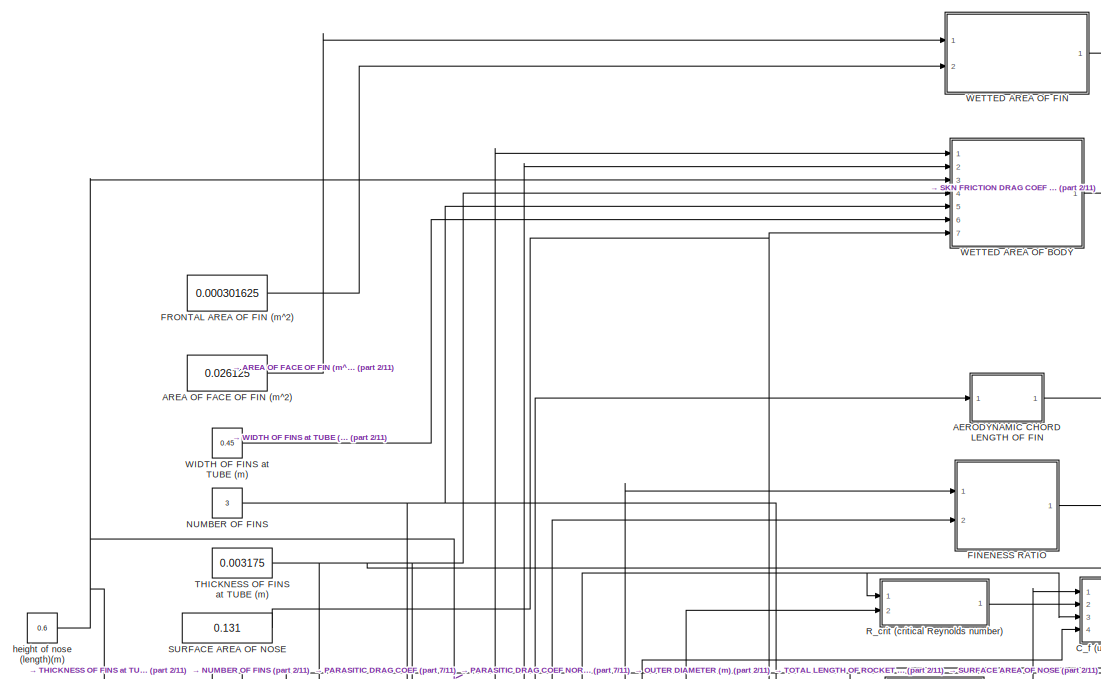
[diagram: root canvas - part 1/11, top left region]
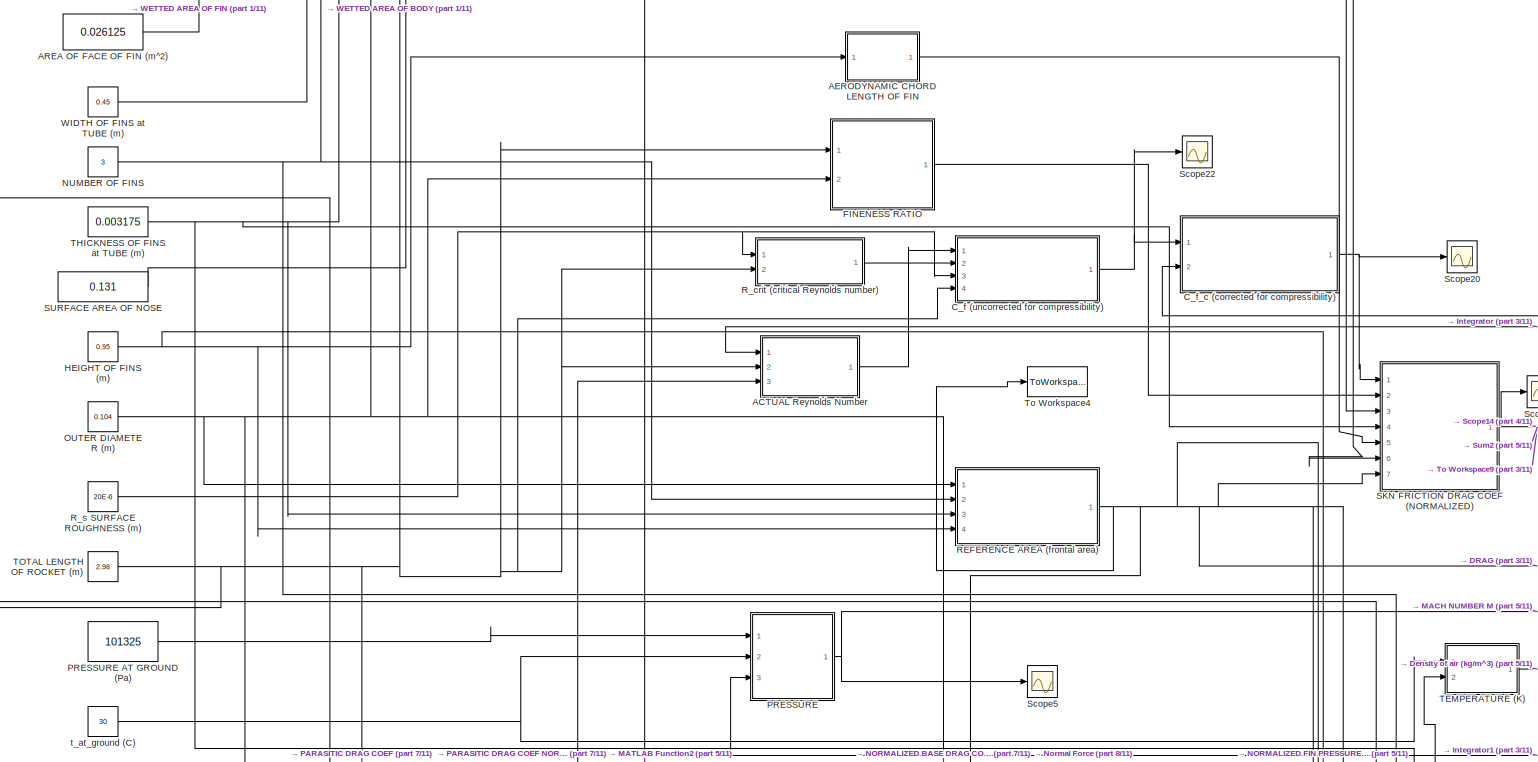
[diagram: root canvas - part 2/11, top center region]
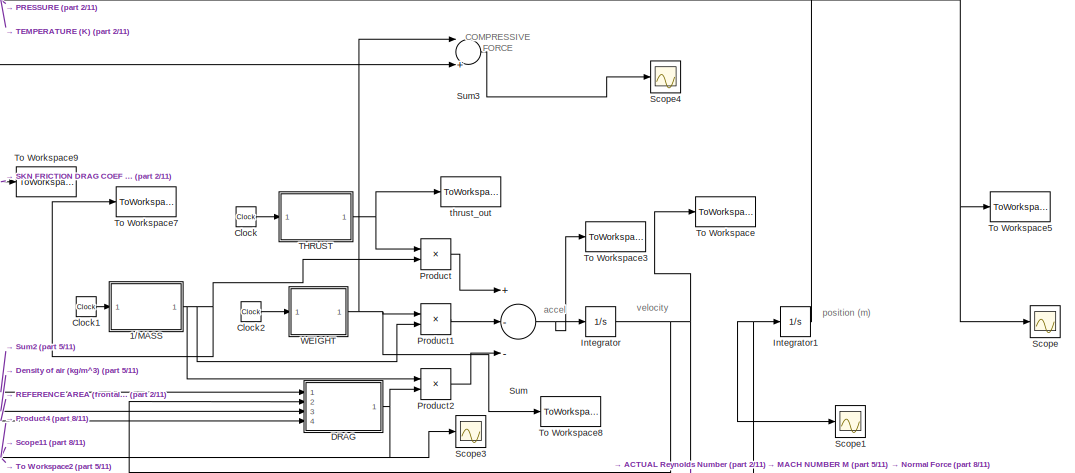
[diagram: root canvas - part 3/11, top right region]
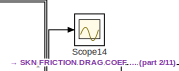
[diagram: root canvas - part 4/11, top center region]
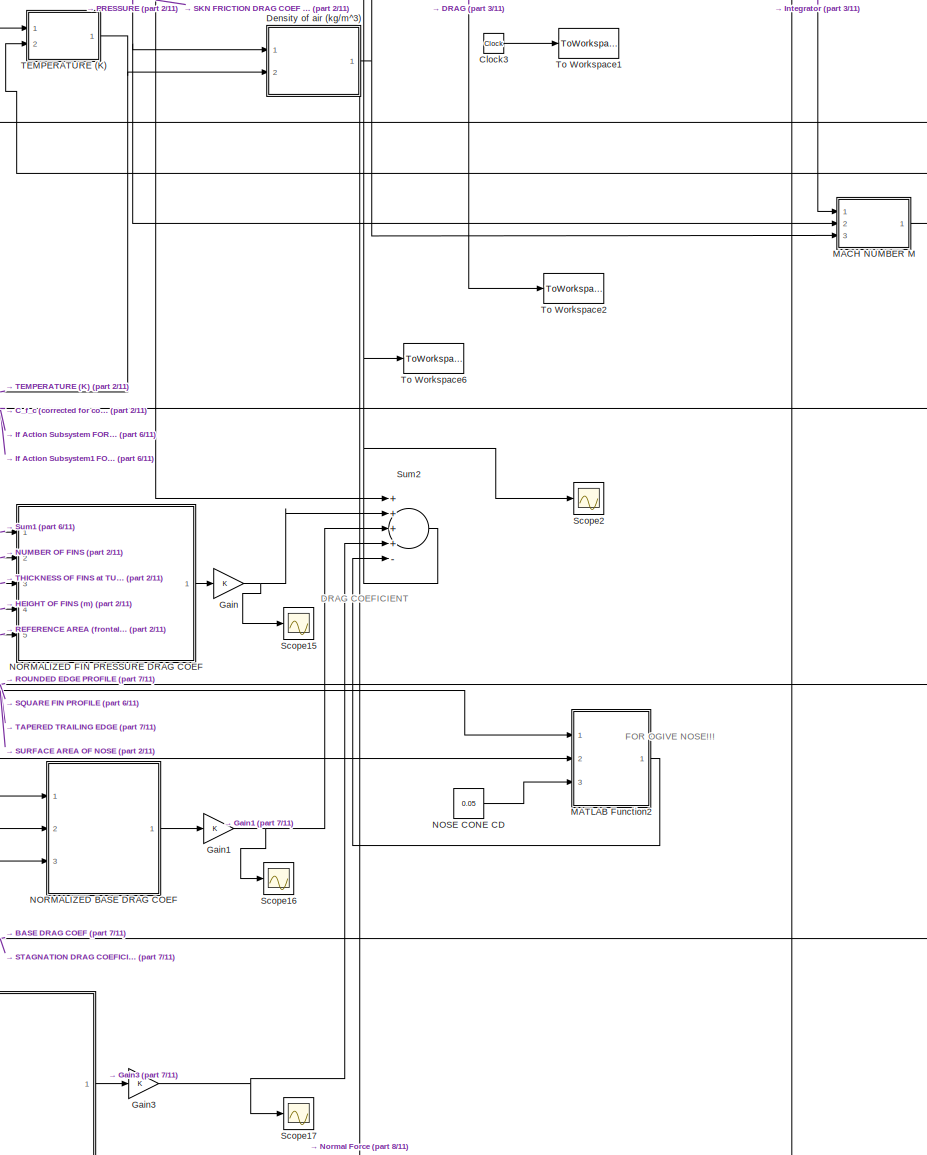
[diagram: root canvas - part 5/11, central region]
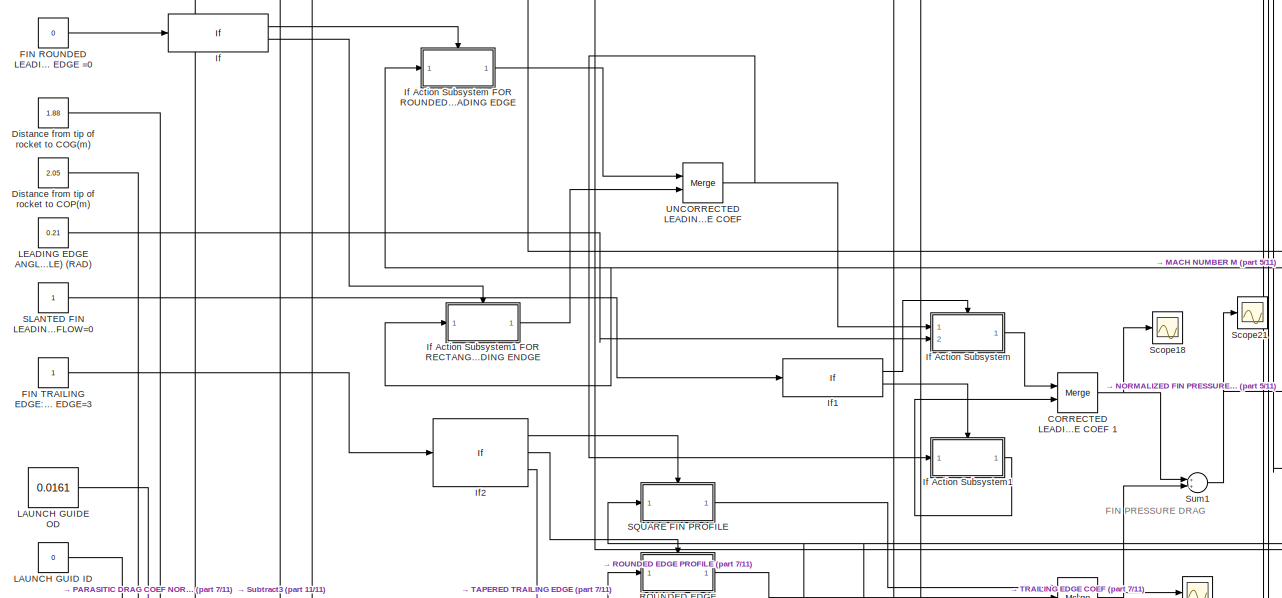
[diagram: root canvas - part 6/11, middle left region]
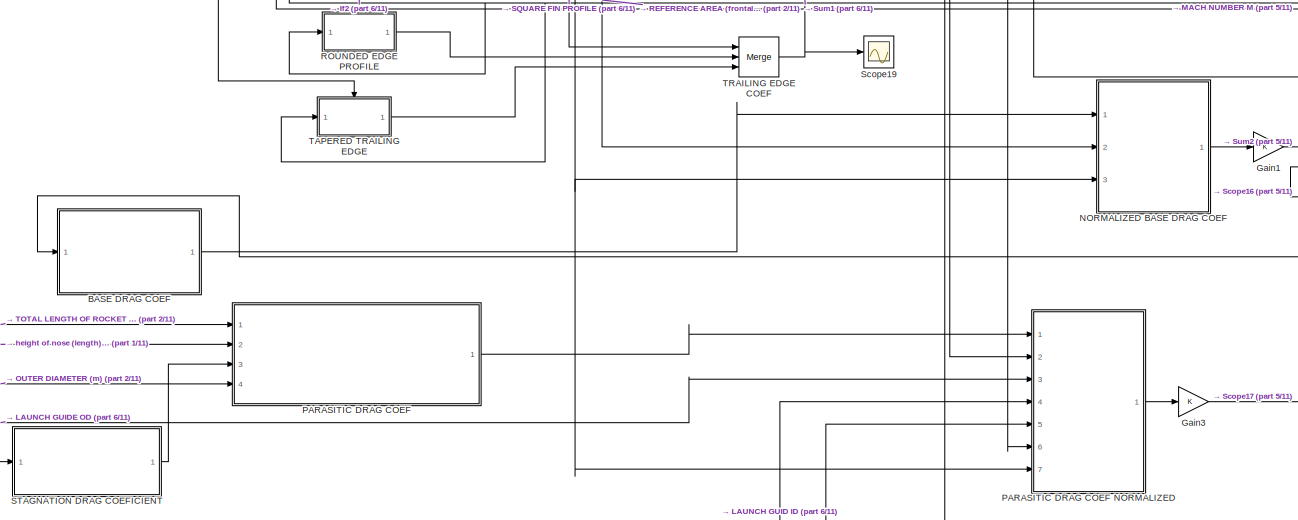
[diagram: root canvas - part 7/11, central region]
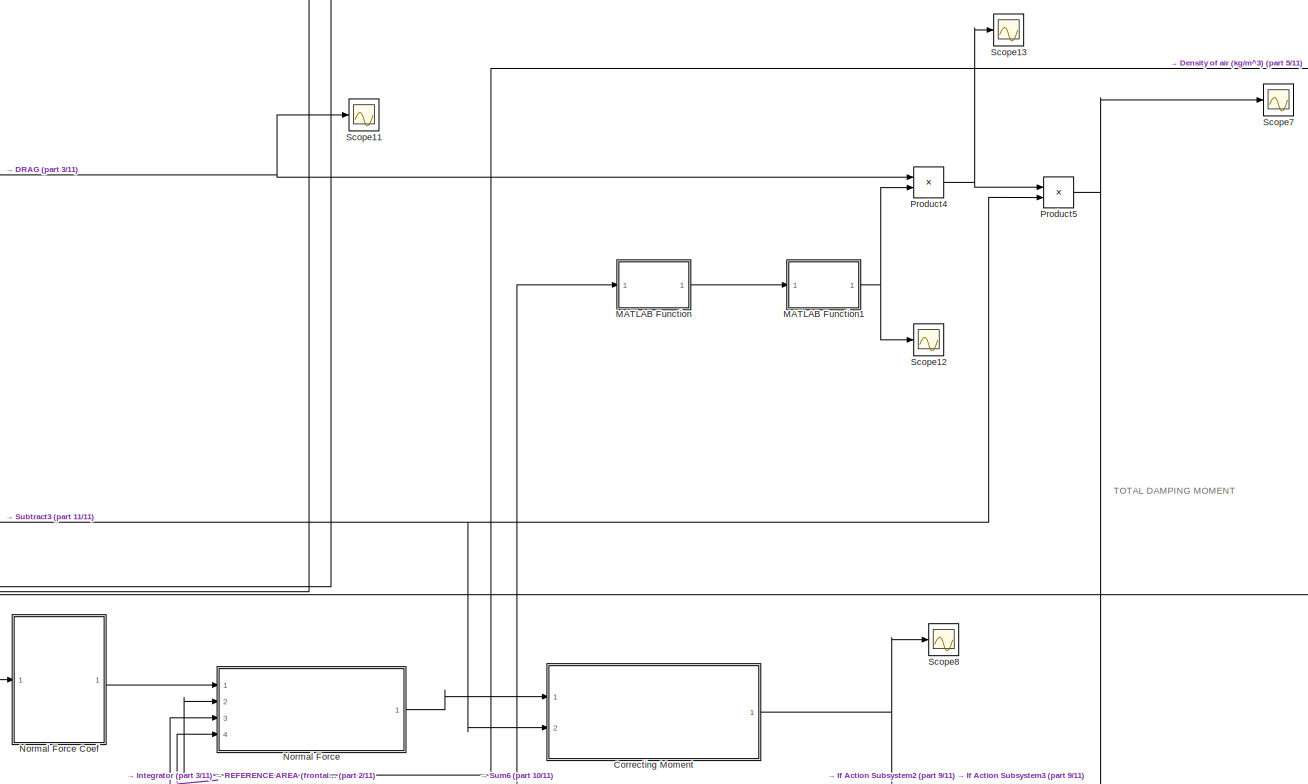
[diagram: root canvas - part 8/11, bottom left region]
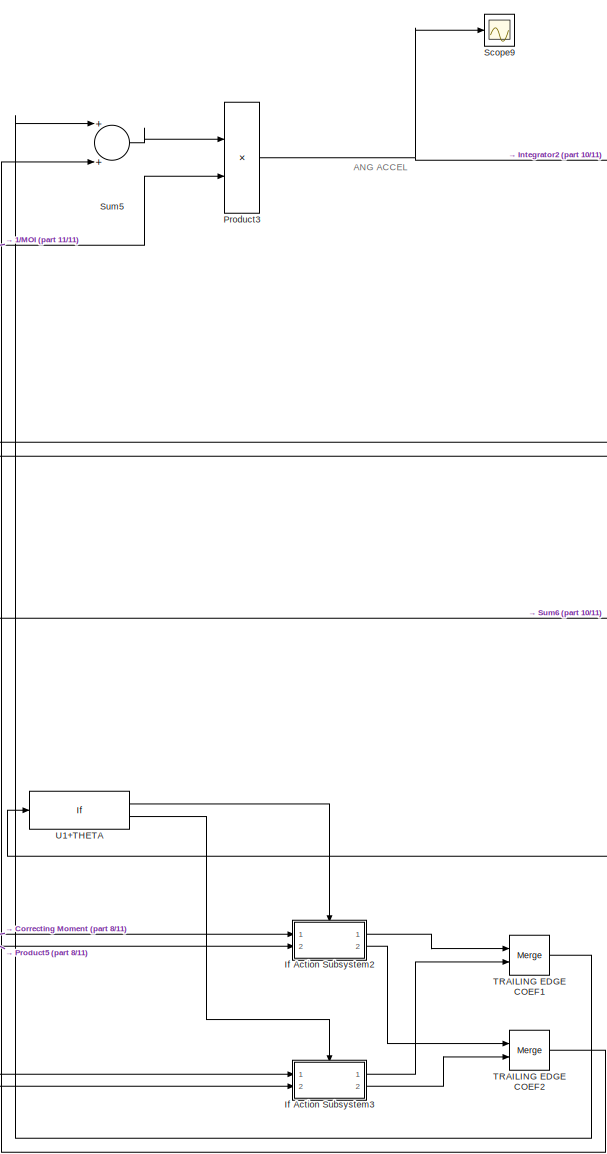
[diagram: root canvas - part 9/11, bottom center region]
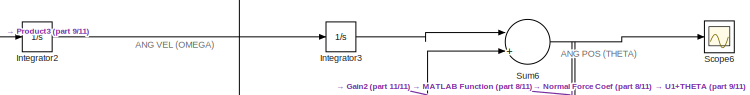
[diagram: root canvas - part 10/11, bottom right region]
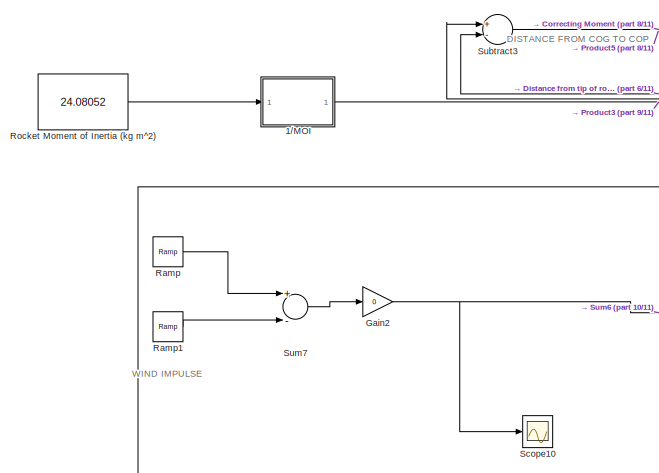
[diagram: root canvas - part 11/11, bottom left region]
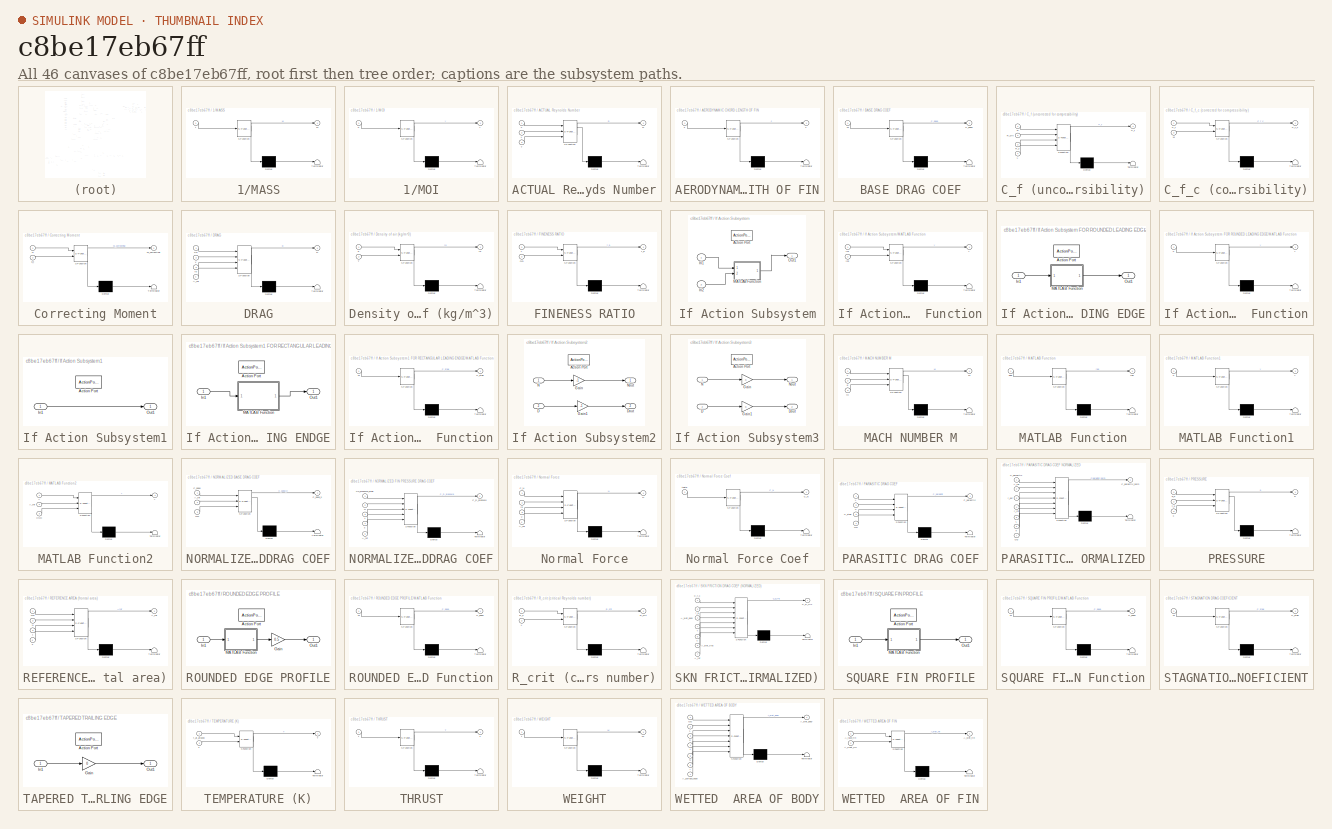
[diagram: thumbnail index - all 46 canvases of the model, root first then tree order]
MODEL slx_c8be17eb67ff
KIND model
BLOCK [SubSystem] 1//MASS
  ErrorFcn = Stateflow.Translate.translate
  PermitHierarchicalResolution = ExplicitOnly
  Ports = [1, 1]
  RequestExecContextInheritance = off
  SFBlockType = MATLAB Function
  TreatAsAtomicUnit = on
BLOCK [Demux] 1//MASS/ Demux 
  Outputs = 1
  Ports = [1, 1]
BLOCK [S-Function] 1//MASS/ SFunction 
  EnableBusSupport = on
  FunctionName = sf_sfun
  PortCounts = [1 2]
  Ports = [1, 2]
  Tag = Stateflow S-Function VELOCITY_MODEL 3
BLOCK [Terminator] 1//MASS/ Terminator 
BLOCK [Outport] 1//MASS/M
  IconDisplay = Port number
BLOCK [Inport] 1//MASS/t
  IconDisplay = Port number
BLOCK [SubSystem] 1//MOI
  ErrorFcn = Stateflow.Translate.translate
  PermitHierarchicalResolution = ExplicitOnly
  Ports = [1, 1]
  RequestExecContextInheritance = off
  SFBlockType = MATLAB Function
  TreatAsAtomicUnit = on
BLOCK [Demux] 1//MOI/ Demux 
  Outputs = 1
  Ports = [1, 1]
BLOCK [S-Function] 1//MOI/ SFunction 
  EnableBusSupport = on
  FunctionName = sf_sfun
  PortCounts = [1 2]
  Ports = [1, 2]
  Tag = Stateflow S-Function VELOCITY_MODEL 37
BLOCK [Terminator] 1//MOI/ Terminator 
BLOCK [Inport] 1//MOI/u
  IconDisplay = Port number
BLOCK [Outport] 1//MOI/y
  IconDisplay = Port number
BLOCK [SubSystem] ACTUAL Reynolds Number
  ErrorFcn = Stateflow.Translate.translate
  PermitHierarchicalResolution = ExplicitOnly
  Ports = [3, 1]
  RequestExecContextInheritance = off
  SFBlockType = MATLAB Function
  TreatAsAtomicUnit = on
BLOCK [Demux] ACTUAL Reynolds Number/ Demux 
  Outputs = 1
  Ports = [1, 1]
BLOCK [S-Function] ACTUAL Reynolds Number/ SFunction 
  EnableBusSupport = on
  FunctionName = sf_sfun
  PortCounts = [3 2]
  Ports = [3, 2]
  Tag = Stateflow S-Function VELOCITY_MODEL 14
BLOCK [Terminator] ACTUAL Reynolds Number/ Terminator 
BLOCK [Inport] ACTUAL Reynolds Number/L
  IconDisplay = Port number
  Port = 2
BLOCK [Outport] ACTUAL Reynolds Number/R
  IconDisplay = Port number
BLOCK [Inport] ACTUAL Reynolds Number/T
  IconDisplay = Port number
  Port = 3
BLOCK [Inport] ACTUAL Reynolds Number/v
  IconDisplay = Port number
BLOCK [SubSystem] AERODYNAMIC CHORD LENGTH OF FIN
  ErrorFcn = Stateflow.Translate.translate
  PermitHierarchicalResolution = ExplicitOnly
  Ports = [1, 1]
  RequestExecContextInheritance = off
  SFBlockType = MATLAB Function
  TreatAsAtomicUnit = on
BLOCK [Demux] AERODYNAMIC CHORD LENGTH OF FIN/ Demux 
  Outputs = 1
  Ports = [1, 1]
BLOCK [S-Function] AERODYNAMIC CHORD LENGTH OF FIN/ SFunction 
  EnableBusSupport = on
  FunctionName = sf_sfun
  PortCounts = [1 2]
  Ports = [1, 2]
  Tag = Stateflow S-Function VELOCITY_MODEL 19
BLOCK [Terminator] AERODYNAMIC CHORD LENGTH OF FIN/ Terminator 
BLOCK [Outport] AERODYNAMIC CHORD LENGTH OF FIN/c
  IconDisplay = Port number
BLOCK [Inport] AERODYNAMIC CHORD LENGTH OF FIN/s
  IconDisplay = Port number
BLOCK [Constant] AREA OF FACE OF FIN (m^2)
  Value = 0.026125
BLOCK [SubSystem] BASE DRAG COEF
  ErrorFcn = Stateflow.Translate.translate
  PermitHierarchicalResolution = ExplicitOnly
  Ports = [1, 1]
  RequestExecContextInheritance = off
  SFBlockType = MATLAB Function
  TreatAsAtomicUnit = on
BLOCK [Demux] BASE DRAG COEF/ Demux 
  Outputs = 1
  Ports = [1, 1]
BLOCK [S-Function] BASE DRAG COEF/ SFunction 
  EnableBusSupport = on
  FunctionName = sf_sfun
  PortCounts = [1 2]
  Ports = [1, 2]
  Tag = Stateflow S-Function VELOCITY_MODEL 10
BLOCK [Terminator] BASE DRAG COEF/ Terminator 
BLOCK [Outport] BASE DRAG COEF/C_base
  IconDisplay = Port number
BLOCK [Inport] BASE DRAG COEF/M
  IconDisplay = Port number
BLOCK [Merge] CORRECTED LEADING EDGE COEF 1
  Ports = [2, 1]
BLOCK [SubSystem] C_f (uncorrected for compressibility)
  ErrorFcn = Stateflow.Translate.translate
  PermitHierarchicalResolution = ExplicitOnly
  Ports = [4, 1]
  RequestExecContextInheritance = off
  SFBlockType = MATLAB Function
  TreatAsAtomicUnit = on
BLOCK [Demux] C_f (uncorrected for compressibility)/ Demux 
  Outputs = 1
  Ports = [1, 1]
BLOCK [S-Function] C_f (uncorrected for compressibility)/ SFunction 
  EnableBusSupport = on
  FunctionName = sf_sfun
  PortCounts = [4 2]
  Ports = [4, 2]
  Tag = Stateflow S-Function VELOCITY_MODEL 13
BLOCK [Terminator] C_f (uncorrected for compressibility)/ Terminator 
BLOCK [Outport] C_f (uncorrected for compressibility)/C_f
  IconDisplay = Port number
BLOCK [Inport] C_f (uncorrected for compressibility)/L
  IconDisplay = Port number
  Port = 4
BLOCK [Inport] C_f (uncorrected for compressibility)/R
  IconDisplay = Port number
BLOCK [Inport] C_f (uncorrected for compressibility)/R_crit
  IconDisplay = Port number
  Port = 2
BLOCK [Inport] C_f (uncorrected for compressibility)/R_s
  IconDisplay = Port number
  Port = 3
BLOCK [SubSystem] C_f_c (corrected for compressibility)
  ErrorFcn = Stateflow.Translate.translate
  PermitHierarchicalResolution = ExplicitOnly
  Ports = [2, 1]
  RequestExecContextInheritance = off
  SFBlockType = MATLAB Function
  TreatAsAtomicUnit = on
BLOCK [Demux] C_f_c (corrected for compressibility)/ Demux 
  Outputs = 1
  Ports = [1, 1]
BLOCK [S-Function] C_f_c (corrected for compressibility)/ SFunction 
  EnableBusSupport = on
  FunctionName = sf_sfun
  PortCounts = [2 2]
  Ports = [2, 2]
  Tag = Stateflow S-Function VELOCITY_MODEL 16
BLOCK [Terminator] C_f_c (corrected for compressibility)/ Terminator 
BLOCK [Inport] C_f_c (corrected for compressibility)/C_f
  IconDisplay = Port number
BLOCK [Outport] C_f_c (corrected for compressibility)/C_f_c
  IconDisplay = Port number
BLOCK [Inport] C_f_c (corrected for compressibility)/M
  IconDisplay = Port number
  Port = 2
BLOCK [Clock] Clock
BLOCK [Clock] Clock1
BLOCK [Clock] Clock2
BLOCK [Clock] Clock3
BLOCK [SubSystem] Correcting Moment
  ErrorFcn = Stateflow.Translate.translate
  PermitHierarchicalResolution = ExplicitOnly
  Ports = [2, 1]
  RequestExecContextInheritance = off
  SFBlockType = MATLAB Function
  TreatAsAtomicUnit = on
BLOCK [Demux] Correcting Moment/ Demux 
  Outputs = 1
  Ports = [1, 1]
BLOCK [S-Function] Correcting Moment/ SFunction 
  EnableBusSupport = on
  FunctionName = sf_sfun
  PortCounts = [2 2]
  Ports = [2, 2]
  Tag = Stateflow S-Function VELOCITY_MODEL 34
BLOCK [Terminator] Correcting Moment/ Terminator 
BLOCK [Outport] Correcting Moment/M_correcting
  IconDisplay = Port number
BLOCK [Inport] Correcting Moment/N
  IconDisplay = Port number
BLOCK [Inport] Correcting Moment/d_t
  IconDisplay = Port number
  Port = 2
BLOCK [SubSystem] DRAG
  ErrorFcn = Stateflow.Translate.translate
  PermitHierarchicalResolution = ExplicitOnly
  Ports = [4, 1]
  RequestExecContextInheritance = off
  SFBlockType = MATLAB Function
  TreatAsAtomicUnit = on
BLOCK [Demux] DRAG/ Demux 
  Outputs = 1
  Ports = [1, 1]
BLOCK [S-Function] DRAG/ SFunction 
  EnableBusSupport = on
  FunctionName = sf_sfun
  PortCounts = [4 2]
  Ports = [4, 2]
  Tag = Stateflow S-Function VELOCITY_MODEL 4
BLOCK [Terminator] DRAG/ Terminator 
BLOCK [Inport] DRAG/A_ref
  IconDisplay = Port number
  Port = 4
BLOCK [Inport] DRAG/Cd
  IconDisplay = Port number
BLOCK [Outport] DRAG/D
  IconDisplay = Port number
BLOCK [Inport] DRAG/ro
  IconDisplay = Port number
  Port = 3
BLOCK [Inport] DRAG/v
  IconDisplay = Port number
  Port = 2
BLOCK [SubSystem] Density of air (kg//m^3)
  ErrorFcn = Stateflow.Translate.translate
  PermitHierarchicalResolution = ExplicitOnly
  Ports = [2, 1]
  RequestExecContextInheritance = off
  SFBlockType = MATLAB Function
  TreatAsAtomicUnit = on
BLOCK [Demux] Density of air (kg//m^3)/ Demux 
  Outputs = 1
  Ports = [1, 1]
BLOCK [S-Function] Density of air (kg//m^3)/ SFunction 
  EnableBusSupport = on
  FunctionName = sf_sfun
  PortCounts = [2 2]
  Ports = [2, 2]
  Tag = Stateflow S-Function VELOCITY_MODEL 6
BLOCK [Terminator] Density of air (kg//m^3)/ Terminator 
BLOCK [Inport] Density of air (kg//m^3)/T
  IconDisplay = Port number
  Port = 2
BLOCK [Inport] Density of air (kg//m^3)/p
  IconDisplay = Port number
BLOCK [Outport] Density of air (kg//m^3)/ro
  IconDisplay = Port number
BLOCK [Constant] Distance from tip of rocket to COG(m)
  Value = 1.88
BLOCK [Constant] Distance from tip of rocket to COP(m)
  Value = 2.05
BLOCK [Constant] FIN ROUNDED LEADING EDGE=1 RECT' LEADING EDGE =0
  Value = 0
BLOCK [Constant] FIN TRAILING EDGE: SQUARE FIN PROFILE=1 ROUNDED EDGE PROFILE=2 TAPERED TRAILING EDGE=3 
BLOCK [SubSystem] FINENESS RATIO
  ErrorFcn = Stateflow.Translate.translate
  PermitHierarchicalResolution = ExplicitOnly
  Ports = [2, 1]
  RequestExecContextInheritance = off
  SFBlockType = MATLAB Function
  TreatAsAtomicUnit = on
BLOCK [Demux] FINENESS RATIO/ Demux 
  Outputs = 1
  Ports = [1, 1]
BLOCK [S-Function] FINENESS RATIO/ SFunction 
  EnableBusSupport = on
  FunctionName = sf_sfun
  PortCounts = [2 2]
  Ports = [2, 2]
  Tag = Stateflow S-Function VELOCITY_MODEL 18
BLOCK [Terminator] FINENESS RATIO/ Terminator 
BLOCK [Inport] FINENESS RATIO/L
  IconDisplay = Port number
BLOCK [Inport] FINENESS RATIO/OD
  IconDisplay = Port number
  Port = 2
BLOCK [Outport] FINENESS RATIO/f_b
  IconDisplay = Port number
BLOCK [Constant] FRONTAL AREA OF FIN (m^2)
  Value = 0.000301625
BLOCK [Gain] Gain
  OutDataTypeStr = Inherit: Inherit via internal rule
  ParamDataTypeStr = Inherit: Inherit via internal rule
  SaturateOnIntegerOverflow = off
BLOCK [Gain] Gain1
  OutDataTypeStr = Inherit: Inherit via internal rule
  ParamDataTypeStr = Inherit: Inherit via internal rule
  SaturateOnIntegerOverflow = off
BLOCK [Gain] Gain2
  Gain = 0
  OutDataTypeStr = Inherit: Inherit via internal rule
  ParamDataTypeStr = Inherit: Inherit via internal rule
  SaturateOnIntegerOverflow = off
BLOCK [Gain] Gain3
  OutDataTypeStr = Inherit: Inherit via internal rule
  ParamDataTypeStr = Inherit: Inherit via internal rule
  SaturateOnIntegerOverflow = off
BLOCK [Constant] HEIGHT OF FINS (m)
  Value = 0.95
BLOCK [If] If
  IfExpression = u1==1
  Ports = [1, 2]
BLOCK [SubSystem] If Action Subsystem
  Ports = [2, 1, 0, 0, 0, 0, 0, 1]
  RequestExecContextInheritance = off
  TreatAsAtomicUnit = on
BLOCK [SubSystem] If Action Subsystem FOR ROUNDED LEADING EDGE
  Ports = [1, 1, 0, 0, 0, 0, 0, 1]
  RequestExecContextInheritance = off
  TreatAsAtomicUnit = on
BLOCK [ActionPort] If Action Subsystem FOR ROUNDED LEADING EDGE/Action Port
  ActionType = then
BLOCK [Inport] If Action Subsystem FOR ROUNDED LEADING EDGE/In1
  IconDisplay = Port number
BLOCK [SubSystem] If Action Subsystem FOR ROUNDED LEADING EDGE/MATLAB Function
  ErrorFcn = Stateflow.Translate.translate
  PermitHierarchicalResolution = ExplicitOnly
  Ports = [1, 1]
  RequestExecContextInheritance = off
  SFBlockType = MATLAB Function
  TreatAsAtomicUnit = on
BLOCK [Demux] If Action Subsystem FOR ROUNDED LEADING EDGE/MATLAB Function/ Demux 
  Outputs = 1
  Ports = [1, 1]
BLOCK [S-Function] If Action Subsystem FOR ROUNDED LEADING EDGE/MATLAB Function/ SFunction 
  EnableBusSupport = on
  FunctionName = sf_sfun
  PortCounts = [1 2]
  Ports = [1, 2]
  Tag = Stateflow S-Function VELOCITY_MODEL 26
BLOCK [Terminator] If Action Subsystem FOR ROUNDED LEADING EDGE/MATLAB Function/ Terminator 
BLOCK [Inport] If Action Subsystem FOR ROUNDED LEADING EDGE/MATLAB Function/u
  IconDisplay = Port number
BLOCK [Outport] If Action Subsystem FOR ROUNDED LEADING EDGE/MATLAB Function/y
  IconDisplay = Port number
BLOCK [Outport] If Action Subsystem FOR ROUNDED LEADING EDGE/Out1
  IconDisplay = Port number
BLOCK [ActionPort] If Action Subsystem/Action Port
  ActionType = then
BLOCK [Inport] If Action Subsystem/In1
  IconDisplay = Port number
BLOCK [Inport] If Action Subsystem/In2
  IconDisplay = Port number
  Port = 2
BLOCK [SubSystem] If Action Subsystem/MATLAB Function
  ErrorFcn = Stateflow.Translate.translate
  PermitHierarchicalResolution = ExplicitOnly
  Ports = [2, 1]
  RequestExecContextInheritance = off
  SFBlockType = MATLAB Function
  TreatAsAtomicUnit = on
BLOCK [Demux] If Action Subsystem/MATLAB Function/ Demux 
  Outputs = 1
  Ports = [1, 1]
BLOCK [S-Function] If Action Subsystem/MATLAB Function/ SFunction 
  EnableBusSupport = on
  FunctionName = sf_sfun
  PortCounts = [2 2]
  Ports = [2, 2]
  Tag = Stateflow S-Function VELOCITY_MODEL 8
BLOCK [Terminator] If Action Subsystem/MATLAB Function/ Terminator 
BLOCK [Inport] If Action Subsystem/MATLAB Function/in1
  IconDisplay = Port number
BLOCK [Inport] If Action Subsystem/MATLAB Function/in2
  IconDisplay = Port number
  Port = 2
BLOCK [Outport] If Action Subsystem/MATLAB Function/y
  IconDisplay = Port number
BLOCK [Outport] If Action Subsystem/Out1
  IconDisplay = Port number
BLOCK [SubSystem] If Action Subsystem1
  Ports = [1, 1, 0, 0, 0, 0, 0, 1]
  RequestExecContextInheritance = off
  TreatAsAtomicUnit = on
BLOCK [SubSystem] If Action Subsystem1 FOR RECTANGULAR LEADING ENDGE
  Ports = [1, 1, 0, 0, 0, 0, 0, 1]
  RequestExecContextInheritance = off
  TreatAsAtomicUnit = on
BLOCK [ActionPort] If Action Subsystem1 FOR RECTANGULAR LEADING ENDGE/Action Port
  ActionType = else
BLOCK [Inport] If Action Subsystem1 FOR RECTANGULAR LEADING ENDGE/In1
  IconDisplay = Port number
BLOCK [SubSystem] If Action Subsystem1 FOR RECTANGULAR LEADING ENDGE/MATLAB Function
  ErrorFcn = Stateflow.Translate.translate
  PermitHierarchicalResolution = ExplicitOnly
  Ports = [1, 1]
  RequestExecContextInheritance = off
  SFBlockType = MATLAB Function
  TreatAsAtomicUnit = on
BLOCK [Demux] If Action Subsystem1 FOR RECTANGULAR LEADING ENDGE/MATLAB Function/ Demux 
  Outputs = 1
  Ports = [1, 1]
BLOCK [S-Function] If Action Subsystem1 FOR RECTANGULAR LEADING ENDGE/MATLAB Function/ SFunction 
  EnableBusSupport = on
  FunctionName = sf_sfun
  PortCounts = [1 2]
  Ports = [1, 2]
  Tag = Stateflow S-Function VELOCITY_MODEL 27
BLOCK [Terminator] If Action Subsystem1 FOR RECTANGULAR LEADING ENDGE/MATLAB Function/ Terminator 
BLOCK [Outport] If Action Subsystem1 FOR RECTANGULAR LEADING ENDGE/MATLAB Function/C_stag
  IconDisplay = Port number
BLOCK [Inport] If Action Subsystem1 FOR RECTANGULAR LEADING ENDGE/MATLAB Function/M
  IconDisplay = Port number
BLOCK [Outport] If Action Subsystem1 FOR RECTANGULAR LEADING ENDGE/Out1
  IconDisplay = Port number
BLOCK [ActionPort] If Action Subsystem1/Action Port
  ActionType = else
BLOCK [Inport] If Action Subsystem1/In1
  IconDisplay = Port number
BLOCK [Outport] If Action Subsystem1/Out1
  IconDisplay = Port number
BLOCK [SubSystem] If Action Subsystem2
  Ports = [2, 2, 0, 0, 0, 0, 0, 1]
  RequestExecContextInheritance = off
  TreatAsAtomicUnit = on
BLOCK [ActionPort] If Action Subsystem2/Action Port
  ActionType = then
BLOCK [Inport] If Action Subsystem2/D
  IconDisplay = Port number
  Port = 2
BLOCK [Outport] If Action Subsystem2/Dout
  IconDisplay = Port number
  Port = 2
BLOCK [Gain] If Action Subsystem2/Gain
  Gain = -1
  OutDataTypeStr = Inherit: Inherit via internal rule
  ParamDataTypeStr = Inherit: Inherit via internal rule
  SaturateOnIntegerOverflow = off
BLOCK [Gain] If Action Subsystem2/Gain1
  Gain = -1
  OutDataTypeStr = Inherit: Inherit via internal rule
  ParamDataTypeStr = Inherit: Inherit via internal rule
  SaturateOnIntegerOverflow = off
BLOCK [Inport] If Action Subsystem2/N
  IconDisplay = Port number
BLOCK [Outport] If Action Subsystem2/Nout
  IconDisplay = Port number
BLOCK [SubSystem] If Action Subsystem3
  Ports = [2, 2, 0, 0, 0, 0, 0, 1]
  RequestExecContextInheritance = off
  TreatAsAtomicUnit = on
BLOCK [ActionPort] If Action Subsystem3/Action Port
  ActionType = else
BLOCK [Inport] If Action Subsystem3/D
  IconDisplay = Port number
  Port = 2
BLOCK [Outport] If Action Subsystem3/Dout
  IconDisplay = Port number
  Port = 2
BLOCK [Gain] If Action Subsystem3/Gain
  OutDataTypeStr = Inherit: Inherit via internal rule
  ParamDataTypeStr = Inherit: Inherit via internal rule
  SaturateOnIntegerOverflow = off
BLOCK [Gain] If Action Subsystem3/Gain1
  OutDataTypeStr = Inherit: Inherit via internal rule
  ParamDataTypeStr = Inherit: Inherit via internal rule
  SaturateOnIntegerOverflow = off
BLOCK [Inport] If Action Subsystem3/N
  IconDisplay = Port number
BLOCK [Outport] If Action Subsystem3/Nout
  IconDisplay = Port number
BLOCK [If] If1
  IfExpression = u1 == 1
  Ports = [1, 2]
BLOCK [If] If2
  ElseIfExpressions = u1==2
  IfExpression = u1 ==1
  Ports = [1, 3]
BLOCK [Integrator] Integrator
  Ports = [1, 1]
BLOCK [Integrator] Integrator1
  Ports = [1, 1]
BLOCK [Integrator] Integrator2
  Ports = [1, 1]
BLOCK [Integrator] Integrator3
  Ports = [1, 1]
BLOCK [Constant] LAUNCH GUID ID
  Value = 0
BLOCK [Constant] LAUNCH GUIDE OD
  Value = 0.0161
BLOCK [Constant] LEADING EDGE ANGLE (IF APPLICABLE) (RAD)
  Value = 0.21
BLOCK [SubSystem] MACH NUMBER M
  ErrorFcn = Stateflow.Translate.translate
  PermitHierarchicalResolution = ExplicitOnly
  Ports = [3, 1]
  RequestExecContextInheritance = off
  SFBlockType = MATLAB Function
  TreatAsAtomicUnit = on
BLOCK [Demux] MACH NUMBER M/ Demux 
  Outputs = 1
  Ports = [1, 1]
BLOCK [S-Function] MACH NUMBER M/ SFunction 
  EnableBusSupport = on
  FunctionName = sf_sfun
  PortCounts = [3 2]
  Ports = [3, 2]
  Tag = Stateflow S-Function VELOCITY_MODEL 15
BLOCK [Terminator] MACH NUMBER M/ Terminator 
BLOCK [Outport] MACH NUMBER M/M
  IconDisplay = Port number
BLOCK [Inport] MACH NUMBER M/p
  IconDisplay = Port number
  Port = 2
BLOCK [Inport] MACH NUMBER M/ro
  IconDisplay = Port number
  Port = 3
BLOCK [Inport] MACH NUMBER M/v
  IconDisplay = Port number
BLOCK [SubSystem] MATLAB Function
  ErrorFcn = Stateflow.Translate.translate
  PermitHierarchicalResolution = ExplicitOnly
  Ports = [1, 1]
  RequestExecContextInheritance = off
  SFBlockType = MATLAB Function
  TreatAsAtomicUnit = on
BLOCK [Demux] MATLAB Function/ Demux 
  Outputs = 1
  Ports = [1, 1]
BLOCK [S-Function] MATLAB Function/ SFunction 
  EnableBusSupport = on
  FunctionName = sf_sfun
  PortCounts = [1 2]
  Ports = [1, 2]
  Tag = Stateflow S-Function VELOCITY_MODEL 30
BLOCK [Terminator] MATLAB Function/ Terminator 
BLOCK [Inport] MATLAB Function/deg
  IconDisplay = Port number
BLOCK [Outport] MATLAB Function/rad
  IconDisplay = Port number
BLOCK [SubSystem] MATLAB Function1
  ErrorFcn = Stateflow.Translate.translate
  PermitHierarchicalResolution = ExplicitOnly
  Ports = [1, 1]
  RequestExecContextInheritance = off
  SFBlockType = MATLAB Function
  TreatAsAtomicUnit = on
BLOCK [Demux] MATLAB Function1/ Demux 
  Outputs = 1
  Ports = [1, 1]
BLOCK [S-Function] MATLAB Function1/ SFunction 
  EnableBusSupport = on
  FunctionName = sf_sfun
  PortCounts = [1 2]
  Ports = [1, 2]
  Tag = Stateflow S-Function VELOCITY_MODEL 31
BLOCK [Terminator] MATLAB Function1/ Terminator 
BLOCK [Inport] MATLAB Function1/u
  IconDisplay = Port number
BLOCK [Outport] MATLAB Function1/y
  IconDisplay = Port number
BLOCK [SubSystem] MATLAB Function2
  ErrorFcn = Stateflow.Translate.translate
  PermitHierarchicalResolution = ExplicitOnly
  Ports = [3, 1]
  RequestExecContextInheritance = off
  SFBlockType = MATLAB Function
  TreatAsAtomicUnit = on
BLOCK [Demux] MATLAB Function2/ Demux 
  Outputs = 1
  Ports = [1, 1]
BLOCK [S-Function] MATLAB Function2/ SFunction 
  EnableBusSupport = on
  FunctionName = sf_sfun
  PortCounts = [3 2]
  Ports = [3, 2]
  Tag = Stateflow S-Function VELOCITY_MODEL 32
BLOCK [Terminator] MATLAB Function2/ Terminator 
BLOCK [Inport] MATLAB Function2/A
  IconDisplay = Port number
BLOCK [Inport] MATLAB Function2/A_ref
  IconDisplay = Port number
  Port = 2
BLOCK [Inport] MATLAB Function2/CND
  IconDisplay = Port number
  Port = 3
BLOCK [Outport] MATLAB Function2/y
  IconDisplay = Port number
BLOCK [SubSystem] NORMALIZED BASE DRAG COEF
  ErrorFcn = Stateflow.Translate.translate
  PermitHierarchicalResolution = ExplicitOnly
  Ports = [3, 1]
  RequestExecContextInheritance = off
  SFBlockType = MATLAB Function
  TreatAsAtomicUnit = on
BLOCK [Demux] NORMALIZED BASE DRAG COEF/ Demux 
  Outputs = 1
  Ports = [1, 1]
BLOCK [S-Function] NORMALIZED BASE DRAG COEF/ SFunction 
  EnableBusSupport = on
  FunctionName = sf_sfun
  PortCounts = [3 2]
  Ports = [3, 2]
  Tag = Stateflow S-Function VELOCITY_MODEL 23
BLOCK [Terminator] NORMALIZED BASE DRAG COEF/ Terminator 
BLOCK [Inport] NORMALIZED BASE DRAG COEF/A_ref
  IconDisplay = Port number
  Port = 2
BLOCK [Inport] NORMALIZED BASE DRAG COEF/C_base
  IconDisplay = Port number
BLOCK [Outport] NORMALIZED BASE DRAG COEF/C_base_n
  IconDisplay = Port number
BLOCK [Inport] NORMALIZED BASE DRAG COEF/OD
  IconDisplay = Port number
  Port = 3
BLOCK [SubSystem] NORMALIZED FIN PRESSURE DRAG COEF
  ErrorFcn = Stateflow.Translate.translate
  PermitHierarchicalResolution = ExplicitOnly
  Ports = [5, 1]
  RequestExecContextInheritance = off
  SFBlockType = MATLAB Function
  TreatAsAtomicUnit = on
BLOCK [Demux] NORMALIZED FIN PRESSURE DRAG COEF/ Demux 
  Outputs = 1
  Ports = [1, 1]
BLOCK [S-Function] NORMALIZED FIN PRESSURE DRAG COEF/ SFunction 
  EnableBusSupport = on
  FunctionName = sf_sfun
  PortCounts = [5 2]
  Ports = [5, 2]
  Tag = Stateflow S-Function VELOCITY_MODEL 5
BLOCK [Terminator] NORMALIZED FIN PRESSURE DRAG COEF/ Terminator 
BLOCK [Inport] NORMALIZED FIN PRESSURE DRAG COEF/A_ref
  IconDisplay = Port number
  Port = 5
BLOCK [Outport] NORMALIZED FIN PRESSURE DRAG COEF/C_D_pressure
  IconDisplay = Port number
BLOCK [Inport] NORMALIZED FIN PRESSURE DRAG COEF/N
  IconDisplay = Port number
  Port = 2
BLOCK [Inport] NORMALIZED FIN PRESSURE DRAG COEF/fin_pressure_drag
  IconDisplay = Port number
BLOCK [Inport] NORMALIZED FIN PRESSURE DRAG COEF/s
  IconDisplay = Port number
  Port = 4
BLOCK [Inport] NORMALIZED FIN PRESSURE DRAG COEF/t
  IconDisplay = Port number
  Port = 3
BLOCK [Constant] NOSE CONE CD
  Value = 0.05
BLOCK [Constant] NUMBER OF FINS
  Value = 3
BLOCK [SubSystem] Normal Force
  ErrorFcn = Stateflow.Translate.translate
  PermitHierarchicalResolution = ExplicitOnly
  Ports = [4, 1]
  RequestExecContextInheritance = off
  SFBlockType = MATLAB Function
  TreatAsAtomicUnit = on
BLOCK [SubSystem] Normal Force Coef
  ErrorFcn = Stateflow.Translate.translate
  PermitHierarchicalResolution = ExplicitOnly
  Ports = [1, 1]
  RequestExecContextInheritance = off
  SFBlockType = MATLAB Function
  TreatAsAtomicUnit = on
BLOCK [Demux] Normal Force Coef/ Demux 
  Outputs = 1
  Ports = [1, 1]
BLOCK [S-Function] Normal Force Coef/ SFunction 
  EnableBusSupport = on
  FunctionName = sf_sfun
  PortCounts = [1 2]
  Ports = [1, 2]
  Tag = Stateflow S-Function VELOCITY_MODEL 36
BLOCK [Terminator] Normal Force Coef/ Terminator 
BLOCK [Outport] Normal Force Coef/C_N
  IconDisplay = Port number
BLOCK [Inport] Normal Force Coef/theta
  IconDisplay = Port number
BLOCK [Demux] Normal Force/ Demux 
  Outputs = 1
  Ports = [1, 1]
BLOCK [S-Function] Normal Force/ SFunction 
  EnableBusSupport = on
  FunctionName = sf_sfun
  PortCounts = [4 2]
  Ports = [4, 2]
  Tag = Stateflow S-Function VELOCITY_MODEL 35
BLOCK [Terminator] Normal Force/ Terminator 
BLOCK [Inport] Normal Force/A_ref
  IconDisplay = Port number
  Port = 4
BLOCK [Inport] Normal Force/C_N
  IconDisplay = Port number
BLOCK [Outport] Normal Force/N
  IconDisplay = Port number
BLOCK [Inport] Normal Force/ro
  IconDisplay = Port number
  Port = 2
BLOCK [Inport] Normal Force/v
  IconDisplay = Port number
  Port = 3
BLOCK [Constant] OUTER DIAMETER (m)
  Value = 0.104
BLOCK [SubSystem] PARASITIC DRAG COEF
  ErrorFcn = Stateflow.Translate.translate
  PermitHierarchicalResolution = ExplicitOnly
  Ports = [4, 1]
  RequestExecContextInheritance = off
  SFBlockType = MATLAB Function
  TreatAsAtomicUnit = on
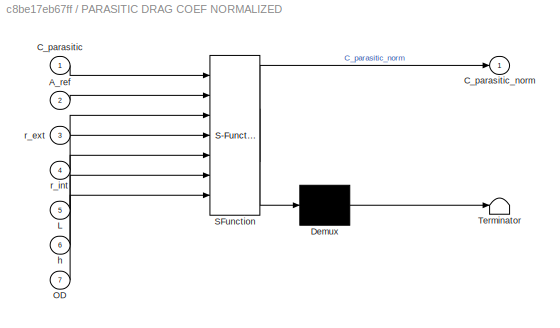
BLOCK [SubSystem] PARASITIC DRAG COEF NORMALIZED
  ErrorFcn = Stateflow.Translate.translate
  PermitHierarchicalResolution = ExplicitOnly
  Ports = [7, 1]
  RequestExecContextInheritance = off
  SFBlockType = MATLAB Function
  TreatAsAtomicUnit = on
BLOCK [Demux] PARASITIC DRAG COEF NORMALIZED/ Demux 
  Outputs = 1
  Ports = [1, 1]
BLOCK [S-Function] PARASITIC DRAG COEF NORMALIZED/ SFunction 
  EnableBusSupport = on
  FunctionName = sf_sfun
  PortCounts = [7 2]
  Ports = [7, 2]
  Tag = Stateflow S-Function VELOCITY_MODEL 29
BLOCK [Terminator] PARASITIC DRAG COEF NORMALIZED/ Terminator 
BLOCK [Inport] PARASITIC DRAG COEF NORMALIZED/A_ref
  IconDisplay = Port number
  Port = 2
BLOCK [Inport] PARASITIC DRAG COEF NORMALIZED/C_parasitic
  IconDisplay = Port number
BLOCK [Outport] PARASITIC DRAG COEF NORMALIZED/C_parasitic_norm
  IconDisplay = Port number
BLOCK [Inport] PARASITIC DRAG COEF NORMALIZED/L
  IconDisplay = Port number
  Port = 5
BLOCK [Inport] PARASITIC DRAG COEF NORMALIZED/OD
  IconDisplay = Port number
  Port = 7
BLOCK [Inport] PARASITIC DRAG COEF NORMALIZED/h
  IconDisplay = Port number
  Port = 6
BLOCK [Inport] PARASITIC DRAG COEF NORMALIZED/r_ext
  IconDisplay = Port number
  Port = 3
BLOCK [Inport] PARASITIC DRAG COEF NORMALIZED/r_int
  IconDisplay = Port number
  Port = 4
BLOCK [Demux] PARASITIC DRAG COEF/ Demux 
  Outputs = 1
  Ports = [1, 1]
BLOCK [S-Function] PARASITIC DRAG COEF/ SFunction 
  EnableBusSupport = on
  FunctionName = sf_sfun
  PortCounts = [4 2]
  Ports = [4, 2]
  Tag = Stateflow S-Function VELOCITY_MODEL 11
BLOCK [Terminator] PARASITIC DRAG COEF/ Terminator 
BLOCK [Outport] PARASITIC DRAG COEF/C_parasitic
  IconDisplay = Port number
BLOCK [Inport] PARASITIC DRAG COEF/C_stag
  IconDisplay = Port number
  Port = 3
BLOCK [Inport] PARASITIC DRAG COEF/L
  IconDisplay = Port number
BLOCK [Inport] PARASITIC DRAG COEF/OD
  IconDisplay = Port number
  Port = 4
BLOCK [Inport] PARASITIC DRAG COEF/h
  IconDisplay = Port number
  Port = 2
BLOCK [SubSystem] PRESSURE
  ErrorFcn = Stateflow.Translate.translate
  PermitHierarchicalResolution = ExplicitOnly
  Ports = [3, 1]
  RequestExecContextInheritance = off
  SFBlockType = MATLAB Function
  TreatAsAtomicUnit = on
BLOCK [Constant] PRESSURE AT GROUND (Pa)
  Value = 101325
BLOCK [Demux] PRESSURE/ Demux 
  Outputs = 1
  Ports = [1, 1]
BLOCK [S-Function] PRESSURE/ SFunction 
  EnableBusSupport = on
  FunctionName = sf_sfun
  PortCounts = [3 2]
  Ports = [3, 2]
  Tag = Stateflow S-Function VELOCITY_MODEL 17
BLOCK [Terminator] PRESSURE/ Terminator 
BLOCK [Outport] PRESSURE/p
  IconDisplay = Port number
BLOCK [Inport] PRESSURE/p_0
  IconDisplay = Port number
BLOCK [Inport] PRESSURE/t_0
  IconDisplay = Port number
  Port = 2
BLOCK [Inport] PRESSURE/x
  IconDisplay = Port number
  Port = 3
BLOCK [Product] Product
  InputSameDT = off
  OutDataTypeStr = Inherit: Inherit via internal rule
  Ports = [2, 1]
  RndMeth = Floor
  SaturateOnIntegerOverflow = off
BLOCK [Product] Product1
  InputSameDT = off
  OutDataTypeStr = Inherit: Inherit via internal rule
  Ports = [2, 1]
  RndMeth = Floor
  SaturateOnIntegerOverflow = off
BLOCK [Product] Product2
  InputSameDT = off
  OutDataTypeStr = Inherit: Inherit via internal rule
  Ports = [2, 1]
  RndMeth = Floor
  SaturateOnIntegerOverflow = off
BLOCK [Product] Product3
  InputSameDT = off
  OutDataTypeStr = Inherit: Inherit via internal rule
  Ports = [2, 1]
  RndMeth = Floor
  SaturateOnIntegerOverflow = off
BLOCK [Product] Product4
  InputSameDT = off
  OutDataTypeStr = Inherit: Inherit via internal rule
  Ports = [2, 1]
  RndMeth = Floor
  SaturateOnIntegerOverflow = off
BLOCK [Product] Product5
  InputSameDT = off
  OutDataTypeStr = Inherit: Inherit via internal rule
  Ports = [2, 1]
  RndMeth = Floor
  SaturateOnIntegerOverflow = off
BLOCK [SubSystem] REFERENCE AREA (frontal area)
  ErrorFcn = Stateflow.Translate.translate
  PermitHierarchicalResolution = ExplicitOnly
  Ports = [4, 1]
  RequestExecContextInheritance = off
  SFBlockType = MATLAB Function
  TreatAsAtomicUnit = on
BLOCK [Demux] REFERENCE AREA (frontal area)/ Demux 
  Outputs = 1
  Ports = [1, 1]
BLOCK [S-Function] REFERENCE AREA (frontal area)/ SFunction 
  EnableBusSupport = on
  FunctionName = sf_sfun
  PortCounts = [4 2]
  Ports = [4, 2]
  Tag = Stateflow S-Function VELOCITY_MODEL 9
BLOCK [Terminator] REFERENCE AREA (frontal area)/ Terminator 
BLOCK [Outport] REFERENCE AREA (frontal area)/A_ref
  IconDisplay = Port number
BLOCK [Inport] REFERENCE AREA (frontal area)/N
  IconDisplay = Port number
  Port = 2
BLOCK [Inport] REFERENCE AREA (frontal area)/OD
  IconDisplay = Port number
BLOCK [Inport] REFERENCE AREA (frontal area)/s
  IconDisplay = Port number
  Port = 4
BLOCK [Inport] REFERENCE AREA (frontal area)/t
  IconDisplay = Port number
  Port = 3
BLOCK [SubSystem] ROUNDED EDGE PROFILE
  Ports = [1, 1, 0, 0, 0, 0, 0, 1]
  RequestExecContextInheritance = off
  TreatAsAtomicUnit = on
BLOCK [ActionPort] ROUNDED EDGE PROFILE/Action Port
  ActionType = elseif
BLOCK [Gain] ROUNDED EDGE PROFILE/Gain
  Gain = 0.5
  OutDataTypeStr = Inherit: Inherit via internal rule
  ParamDataTypeStr = Inherit: Inherit via internal rule
  SaturateOnIntegerOverflow = off
BLOCK [Inport] ROUNDED EDGE PROFILE/In1
  IconDisplay = Port number
BLOCK [SubSystem] ROUNDED EDGE PROFILE/MATLAB Function
  ErrorFcn = Stateflow.Translate.translate
  PermitHierarchicalResolution = ExplicitOnly
  Ports = [1, 1]
  RequestExecContextInheritance = off
  SFBlockType = MATLAB Function
  TreatAsAtomicUnit = on
BLOCK [Demux] ROUNDED EDGE PROFILE/MATLAB Function/ Demux 
  Outputs = 1
  Ports = [1, 1]
BLOCK [S-Function] ROUNDED EDGE PROFILE/MATLAB Function/ SFunction 
  EnableBusSupport = on
  FunctionName = sf_sfun
  PortCounts = [1 2]
  Ports = [1, 2]
  Tag = Stateflow S-Function VELOCITY_MODEL 28
BLOCK [Terminator] ROUNDED EDGE PROFILE/MATLAB Function/ Terminator 
BLOCK [Outport] ROUNDED EDGE PROFILE/MATLAB Function/C_base
  IconDisplay = Port number
BLOCK [Inport] ROUNDED EDGE PROFILE/MATLAB Function/M
  IconDisplay = Port number
BLOCK [Outport] ROUNDED EDGE PROFILE/Out1
  IconDisplay = Port number
BLOCK [SubSystem] R_crit (critical Reynolds number)
  ErrorFcn = Stateflow.Translate.translate
  PermitHierarchicalResolution = ExplicitOnly
  Ports = [2, 1]
  RequestExecContextInheritance = off
  SFBlockType = MATLAB Function
  TreatAsAtomicUnit = on
BLOCK [Demux] R_crit (critical Reynolds number)/ Demux 
  Outputs = 1
  Ports = [1, 1]
BLOCK [S-Function] R_crit (critical Reynolds number)/ SFunction 
  EnableBusSupport = on
  FunctionName = sf_sfun
  PortCounts = [2 2]
  Ports = [2, 2]
  Tag = Stateflow S-Function VELOCITY_MODEL 12
BLOCK [Terminator] R_crit (critical Reynolds number)/ Terminator 
BLOCK [Inport] R_crit (critical Reynolds number)/L
  IconDisplay = Port number
  Port = 2
BLOCK [Outport] R_crit (critical Reynolds number)/R_crit
  IconDisplay = Port number
BLOCK [Inport] R_crit (critical Reynolds number)/R_s
  IconDisplay = Port number
BLOCK [Constant] R_s SURFACE ROUGHNESS (m)
  Value = 20E-6
BLOCK [Reference] Ramp  REF=simulink/Sources/Ramp
  Ports = [0, 1]
  SourceBlock = simulink/Sources/Ramp
  SourceType = Ramp
  VectorParams1D = on
  X0 = 0
  slope = 5
  start = 2
BLOCK [Reference] Ramp1  REF=simulink/Sources/Ramp
  Ports = [0, 1]
  SourceBlock = simulink/Sources/Ramp
  SourceType = Ramp
  VectorParams1D = on
  X0 = 0
  slope = -5
  start = 2.0001
BLOCK [Constant] Rocket Moment of Inertia (kg m^2)
  Value = 24.08052
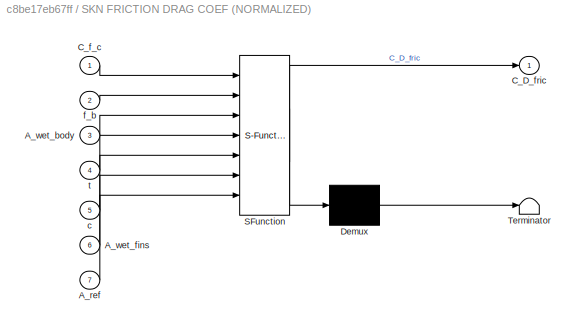
BLOCK [SubSystem] SKN FRICTION DRAG COEF (NORMALIZED)
  ErrorFcn = Stateflow.Translate.translate
  PermitHierarchicalResolution = ExplicitOnly
  Ports = [7, 1]
  RequestExecContextInheritance = off
  SFBlockType = MATLAB Function
  TreatAsAtomicUnit = on
BLOCK [Demux] SKN FRICTION DRAG COEF (NORMALIZED)/ Demux 
  Outputs = 1
  Ports = [1, 1]
BLOCK [S-Function] SKN FRICTION DRAG COEF (NORMALIZED)/ SFunction 
  EnableBusSupport = on
  FunctionName = sf_sfun
  PortCounts = [7 2]
  Ports = [7, 2]
  Tag = Stateflow S-Function VELOCITY_MODEL 20
BLOCK [Terminator] SKN FRICTION DRAG COEF (NORMALIZED)/ Terminator 
BLOCK [Inport] SKN FRICTION DRAG COEF (NORMALIZED)/A_ref
  IconDisplay = Port number
  Port = 7
BLOCK [Inport] SKN FRICTION DRAG COEF (NORMALIZED)/A_wet_body
  IconDisplay = Port number
  Port = 3
BLOCK [Inport] SKN FRICTION DRAG COEF (NORMALIZED)/A_wet_fins
  IconDisplay = Port number
  Port = 6
BLOCK [Outport] SKN FRICTION DRAG COEF (NORMALIZED)/C_D_fric
  IconDisplay = Port number
BLOCK [Inport] SKN FRICTION DRAG COEF (NORMALIZED)/C_f_c
  IconDisplay = Port number
BLOCK [Inport] SKN FRICTION DRAG COEF (NORMALIZED)/c
  IconDisplay = Port number
  Port = 5
BLOCK [Inport] SKN FRICTION DRAG COEF (NORMALIZED)/f_b
  IconDisplay = Port number
  Port = 2
BLOCK [Inport] SKN FRICTION DRAG COEF (NORMALIZED)/t
  IconDisplay = Port number
  Port = 4
BLOCK [Constant] SLANTED FIN LEADING EDGE=1 FIN PERPENDICULAR TO AIRFLOW=0
BLOCK [SubSystem] SQUARE FIN PROFILE
  Ports = [1, 1, 0, 0, 0, 0, 0, 1]
  RequestExecContextInheritance = off
  TreatAsAtomicUnit = on
BLOCK [ActionPort] SQUARE FIN PROFILE/Action Port
  ActionType = then
BLOCK [Inport] SQUARE FIN PROFILE/In1
  IconDisplay = Port number
BLOCK [SubSystem] SQUARE FIN PROFILE/MATLAB Function
  ErrorFcn = Stateflow.Translate.translate
  PermitHierarchicalResolution = ExplicitOnly
  Ports = [1, 1]
  RequestExecContextInheritance = off
  SFBlockType = MATLAB Function
  TreatAsAtomicUnit = on
BLOCK [Demux] SQUARE FIN PROFILE/MATLAB Function/ Demux 
  Outputs = 1
  Ports = [1, 1]
BLOCK [S-Function] SQUARE FIN PROFILE/MATLAB Function/ SFunction 
  EnableBusSupport = on
  FunctionName = sf_sfun
  PortCounts = [1 2]
  Ports = [1, 2]
  Tag = Stateflow S-Function VELOCITY_MODEL 24
BLOCK [Terminator] SQUARE FIN PROFILE/MATLAB Function/ Terminator 
BLOCK [Outport] SQUARE FIN PROFILE/MATLAB Function/C_base
  IconDisplay = Port number
BLOCK [Inport] SQUARE FIN PROFILE/MATLAB Function/M
  IconDisplay = Port number
BLOCK [Outport] SQUARE FIN PROFILE/Out1
  IconDisplay = Port number
BLOCK [SubSystem] STAGNATION DRAG COEFICIENT
  ErrorFcn = Stateflow.Translate.translate
  PermitHierarchicalResolution = ExplicitOnly
  Ports = [1, 1]
  RequestExecContextInheritance = off
  SFBlockType = MATLAB Function
  TreatAsAtomicUnit = on
BLOCK [Demux] STAGNATION DRAG COEFICIENT/ Demux 
  Outputs = 1
  Ports = [1, 1]
BLOCK [S-Function] STAGNATION DRAG COEFICIENT/ SFunction 
  EnableBusSupport = on
  FunctionName = sf_sfun
  PortCounts = [1 2]
  Ports = [1, 2]
  Tag = Stateflow S-Function VELOCITY_MODEL 25
BLOCK [Terminator] STAGNATION DRAG COEFICIENT/ Terminator 
BLOCK [Outport] STAGNATION DRAG COEFICIENT/C_stag
  IconDisplay = Port number
BLOCK [Inport] STAGNATION DRAG COEFICIENT/M
  IconDisplay = Port number
BLOCK [Constant] SURFACE AREA OF NOSE
  Value = 0.131
BLOCK [Scope] Scope
  DataFormat = StructureWithTime
  Floating = off
  NumInputPorts = 1
  Ports = [1]
  SampleTime = 0
  ShowLegends = off
BLOCK [Scope] Scope1
  DataFormat = StructureWithTime
  Floating = off
  NumInputPorts = 1
  Ports = [1]
  SampleTime = 0
  SaveName = ScopeData1
  ShowLegends = off
BLOCK [Scope] Scope10
  DataFormat = StructureWithTime
  Floating = off
  NumInputPorts = 1
  Ports = [1]
  SampleTime = 0
  SaveName = ScopeData10
  ShowLegends = off
BLOCK [Scope] Scope11
  DataFormat = StructureWithTime
  Floating = off
  NumInputPorts = 1
  Ports = [1]
  SampleTime = 0
  SaveName = ScopeData11
  ShowLegends = off
BLOCK [Scope] Scope12
  DataFormat = StructureWithTime
  Floating = off
  NumInputPorts = 1
  Ports = [1]
  SampleTime = 0
  SaveName = ScopeData12
  ShowLegends = off
BLOCK [Scope] Scope13
  DataFormat = StructureWithTime
  Floating = off
  NumInputPorts = 1
  Ports = [1]
  SampleTime = 0
  SaveName = ScopeData13
  ShowLegends = off
BLOCK [Scope] Scope14
  DataFormat = StructureWithTime
  Floating = off
  NumInputPorts = 1
  Ports = [1]
  SampleTime = 0
  SaveName = ScopeData14
  ShowLegends = off
BLOCK [Scope] Scope15
  DataFormat = StructureWithTime
  Floating = off
  NumInputPorts = 1
  Ports = [1]
  SampleTime = 0
  SaveName = ScopeData15
  ShowLegends = off
BLOCK [Scope] Scope16
  DataFormat = StructureWithTime
  Floating = off
  NumInputPorts = 1
  Ports = [1]
  SampleTime = 0
  SaveName = ScopeData16
  ShowLegends = off
BLOCK [Scope] Scope17
  DataFormat = StructureWithTime
  Floating = off
  NumInputPorts = 1
  Ports = [1]
  SampleTime = 0
  SaveName = ScopeData17
  ShowLegends = off
BLOCK [Scope] Scope18
  DataFormat = StructureWithTime
  Floating = off
  NumInputPorts = 1
  Ports = [1]
  SampleTime = 0
  SaveName = ScopeData18
  ShowLegends = off
BLOCK [Scope] Scope19
  DataFormat = StructureWithTime
  Floating = off
  NumInputPorts = 1
  Ports = [1]
  SampleTime = 0
  SaveName = ScopeData19
  ShowLegends = off
BLOCK [Scope] Scope2
  DataFormat = StructureWithTime
  Floating = off
  NumInputPorts = 1
  Ports = [1]
  SampleTime = 0
  SaveName = ScopeData2
  ShowLegends = off
BLOCK [Scope] Scope20
  DataFormat = StructureWithTime
  Floating = off
  NumInputPorts = 1
  Ports = [1]
  SampleTime = 0
  SaveName = ScopeData20
  ShowLegends = off
BLOCK [Scope] Scope21
  DataFormat = StructureWithTime
  Floating = off
  NumInputPorts = 1
  Ports = [1]
  SampleTime = 0
  SaveName = ScopeData21
  ShowLegends = off
BLOCK [Scope] Scope22
  DataFormat = StructureWithTime
  Floating = off
  NumInputPorts = 1
  Ports = [1]
  SampleTime = 0
  SaveName = ScopeData22
  ShowLegends = off
BLOCK [Scope] Scope3
  DataFormat = StructureWithTime
  Floating = off
  NumInputPorts = 1
  Ports = [1]
  SampleTime = 0
  SaveName = ScopeData3
  ShowLegends = off
BLOCK [Scope] Scope4
  DataFormat = StructureWithTime
  Floating = off
  NumInputPorts = 1
  Ports = [1]
  SampleTime = 0
  SaveName = ScopeData4
  ShowLegends = off
BLOCK [Scope] Scope5
  DataFormat = StructureWithTime
  Floating = off
  NumInputPorts = 1
  Ports = [1]
  SampleTime = 0
  SaveName = ScopeData5
  ShowLegends = off
BLOCK [Scope] Scope6
  DataFormat = StructureWithTime
  Floating = off
  NumInputPorts = 1
  Ports = [1]
  SampleTime = 0
  SaveName = ScopeData6
  ShowLegends = off
  YMax = 105000
  YMin = 25000
BLOCK [Scope] Scope7
  DataFormat = StructureWithTime
  Floating = off
  NumInputPorts = 1
  Ports = [1]
  SampleTime = 0
  SaveName = ScopeData7
  ShowLegends = off
BLOCK [Scope] Scope8
  DataFormat = StructureWithTime
  Floating = off
  NumInputPorts = 1
  Ports = [1]
  SampleTime = 0
  SaveName = ScopeData8
  ShowLegends = off
BLOCK [Scope] Scope9
  DataFormat = StructureWithTime
  Floating = off
  NumInputPorts = 1
  Ports = [1]
  SampleTime = 0
  SaveName = ScopeData9
  ShowLegends = off
BLOCK [Sum] Subtract3
  InputSameDT = off
  Inputs = +-
  OutDataTypeStr = Inherit: Inherit via internal rule
  Ports = [2, 1]
  SaturateOnIntegerOverflow = off
BLOCK [Sum] Sum
  InputSameDT = off
  Inputs = +--
  OutDataTypeStr = Inherit: Inherit via internal rule
  Ports = [3, 1]
  SaturateOnIntegerOverflow = off
BLOCK [Sum] Sum1
  InputSameDT = off
  OutDataTypeStr = Inherit: Inherit via internal rule
  Ports = [2, 1]
  SaturateOnIntegerOverflow = off
BLOCK [Sum] Sum2
  InputSameDT = off
  Inputs = ++++-
  OutDataTypeStr = Inherit: Inherit via internal rule
  Ports = [5, 1]
  SaturateOnIntegerOverflow = off
BLOCK [Sum] Sum3
  InputSameDT = off
  Inputs = |++
  OutDataTypeStr = Inherit: Inherit via internal rule
  Ports = [2, 1]
  SaturateOnIntegerOverflow = off
BLOCK [Sum] Sum5
  InputSameDT = off
  OutDataTypeStr = Inherit: Inherit via internal rule
  Ports = [2, 1]
  SaturateOnIntegerOverflow = off
BLOCK [Sum] Sum6
  InputSameDT = off
  Inputs = |++
  OutDataTypeStr = Inherit: Inherit via internal rule
  Ports = [2, 1]
  SaturateOnIntegerOverflow = off
BLOCK [Sum] Sum7
  InputSameDT = off
  Inputs = +-
  OutDataTypeStr = Inherit: Inherit via internal rule
  Ports = [2, 1]
  SaturateOnIntegerOverflow = off
BLOCK [SubSystem] TAPERED TRAILING EDGE
  Ports = [1, 1, 0, 0, 0, 0, 0, 1]
  RequestExecContextInheritance = off
  TreatAsAtomicUnit = on
BLOCK [ActionPort] TAPERED TRAILING EDGE/Action Port
  ActionType = else
BLOCK [Gain] TAPERED TRAILING EDGE/Gain
  Gain = 0
  OutDataTypeStr = Inherit: Inherit via internal rule
  ParamDataTypeStr = Inherit: Inherit via internal rule
  SaturateOnIntegerOverflow = off
BLOCK [Inport] TAPERED TRAILING EDGE/In1
  IconDisplay = Port number
BLOCK [Outport] TAPERED TRAILING EDGE/Out1
  IconDisplay = Port number
BLOCK [SubSystem] TEMPERATURE (K)
  ErrorFcn = Stateflow.Translate.translate
  PermitHierarchicalResolution = ExplicitOnly
  Ports = [2, 1]
  RequestExecContextInheritance = off
  SFBlockType = MATLAB Function
  TreatAsAtomicUnit = on
BLOCK [Demux] TEMPERATURE (K)/ Demux 
  Outputs = 1
  Ports = [1, 1]
BLOCK [S-Function] TEMPERATURE (K)/ SFunction 
  EnableBusSupport = on
  FunctionName = sf_sfun
  PortCounts = [2 2]
  Ports = [2, 2]
  Tag = Stateflow S-Function VELOCITY_MODEL 7
BLOCK [Terminator] TEMPERATURE (K)/ Terminator 
BLOCK [Outport] TEMPERATURE (K)/T
  IconDisplay = Port number
BLOCK [Inport] TEMPERATURE (K)/t_at_ground
  IconDisplay = Port number
BLOCK [Inport] TEMPERATURE (K)/x
  IconDisplay = Port number
  Port = 2
BLOCK [Constant] THICKNESS OF FINS at TUBE (m)
  Value = 0.003175
BLOCK [SubSystem] THRUST
  ErrorFcn = Stateflow.Translate.translate
  PermitHierarchicalResolution = ExplicitOnly
  Ports = [1, 1]
  RequestExecContextInheritance = off
  SFBlockType = MATLAB Function
  TreatAsAtomicUnit = on
BLOCK [Demux] THRUST/ Demux 
  Outputs = 1
  Ports = [1, 1]
BLOCK [S-Function] THRUST/ SFunction 
  EnableBusSupport = on
  FunctionName = sf_sfun
  PortCounts = [1 2]
  Ports = [1, 2]
  Tag = Stateflow S-Function VELOCITY_MODEL 2
BLOCK [Terminator] THRUST/ Terminator 
BLOCK [Outport] THRUST/T
  IconDisplay = Port number
BLOCK [Inport] THRUST/t
  IconDisplay = Port number
BLOCK [Constant] TOTAL LENGTH OF ROCKET (m)
  Value = 2.98
BLOCK [Merge] TRAILING EDGE COEF
  Inputs = 3
  Ports = [3, 1]
BLOCK [Merge] TRAILING EDGE COEF1
  Ports = [2, 1]
BLOCK [Merge] TRAILING EDGE COEF2
  Ports = [2, 1]
BLOCK [ToWorkspace] To Workspace
  MaxDataPoints = inf
  Ports = [1]
  SampleTime = -1
  VariableName = v
BLOCK [ToWorkspace] To Workspace1
  MaxDataPoints = inf
  Ports = [1]
  SampleTime = -1
  VariableName = t
BLOCK [ToWorkspace] To Workspace2
  MaxDataPoints = inf
  Ports = [1]
  SampleTime = -1
  VariableName = DRAG
BLOCK [ToWorkspace] To Workspace3
  MaxDataPoints = inf
  Ports = [1]
  SampleTime = -1
  SaveFormat = Timeseries
  VariableName = ACCEL
BLOCK [ToWorkspace] To Workspace4
  MaxDataPoints = inf
  Ports = [1]
  SampleTime = -1
  VariableName = REF_AREA
BLOCK [ToWorkspace] To Workspace5
  MaxDataPoints = inf
  Ports = [1]
  SampleTime = -1
  VariableName = POSITION
BLOCK [ToWorkspace] To Workspace6
  MaxDataPoints = inf
  Ports = [1]
  SampleTime = -1
  VariableName = DRAG_COEF
BLOCK [ToWorkspace] To Workspace7
  FixptAsFi = on
  MaxDataPoints = inf
  Ports = [1]
  SampleTime = -1
  Save2DSignal = 3-D array (concatenate along third dimension)
  VariableName = mass_out
BLOCK [ToWorkspace] To Workspace8
  FixptAsFi = on
  MaxDataPoints = inf
  Ports = [1]
  SampleTime = -1
  Save2DSignal = 3-D array (concatenate along third dimension)
  VariableName = weight_out
BLOCK [ToWorkspace] To Workspace9
  FixptAsFi = on
  MaxDataPoints = inf
  Ports = [1]
  SampleTime = -1
  Save2DSignal = 3-D array (concatenate along third dimension)
  VariableName = skin_fric_drag_cofef
BLOCK [If] U1+THETA
  Ports = [1, 2]
BLOCK [Merge] UNCORRECTED LEADING EDGE COEF 
  Ports = [2, 1]
BLOCK [SubSystem] WEIGHT
  ErrorFcn = Stateflow.Translate.translate
  PermitHierarchicalResolution = ExplicitOnly
  Ports = [1, 1]
  RequestExecContextInheritance = off
  SFBlockType = MATLAB Function
  TreatAsAtomicUnit = on
BLOCK [Demux] WEIGHT/ Demux 
  Outputs = 1
  Ports = [1, 1]
BLOCK [S-Function] WEIGHT/ SFunction 
  EnableBusSupport = on
  FunctionName = sf_sfun
  PortCounts = [1 2]
  Ports = [1, 2]
  Tag = Stateflow S-Function VELOCITY_MODEL 1
BLOCK [Terminator] WEIGHT/ Terminator 
BLOCK [Outport] WEIGHT/W
  IconDisplay = Port number
BLOCK [Inport] WEIGHT/t
  IconDisplay = Port number
BLOCK [SubSystem] WETTED  AREA OF BODY
  ErrorFcn = Stateflow.Translate.translate
  PermitHierarchicalResolution = ExplicitOnly
  Ports = [7, 1]
  RequestExecContextInheritance = off
  SFBlockType = MATLAB Function
  TreatAsAtomicUnit = on
BLOCK [Demux] WETTED  AREA OF BODY/ Demux 
  Outputs = 1
  Ports = [1, 1]
BLOCK [S-Function] WETTED  AREA OF BODY/ SFunction 
  EnableBusSupport = on
  FunctionName = sf_sfun
  PortCounts = [7 2]
  Ports = [7, 2]
  Tag = Stateflow S-Function VELOCITY_MODEL 21
BLOCK [Terminator] WETTED  AREA OF BODY/ Terminator 
BLOCK [Inport] WETTED  AREA OF BODY/A_surface_nose
  IconDisplay = Port number
  Port = 7
BLOCK [Outport] WETTED  AREA OF BODY/A_wet_body
  IconDisplay = Port number
BLOCK [Inport] WETTED  AREA OF BODY/L
  IconDisplay = Port number
  Port = 2
BLOCK [Inport] WETTED  AREA OF BODY/N
  IconDisplay = Port number
  Port = 5
BLOCK [Inport] WETTED  AREA OF BODY/OD
  IconDisplay = Port number
BLOCK [Inport] WETTED  AREA OF BODY/h
  IconDisplay = Port number
  Port = 3
BLOCK [Inport] WETTED  AREA OF BODY/l
  IconDisplay = Port number
  Port = 6
BLOCK [Inport] WETTED  AREA OF BODY/t
  IconDisplay = Port number
  Port = 4
BLOCK [SubSystem] WETTED  AREA OF FIN
  ErrorFcn = Stateflow.Translate.translate
  PermitHierarchicalResolution = ExplicitOnly
  Ports = [2, 1]
  RequestExecContextInheritance = off
  SFBlockType = MATLAB Function
  TreatAsAtomicUnit = on
BLOCK [Demux] WETTED  AREA OF FIN/ Demux 
  Outputs = 1
  Ports = [1, 1]
BLOCK [S-Function] WETTED  AREA OF FIN/ SFunction 
  EnableBusSupport = on
  FunctionName = sf_sfun
  PortCounts = [2 2]
  Ports = [2, 2]
  Tag = Stateflow S-Function VELOCITY_MODEL 22
BLOCK [Terminator] WETTED  AREA OF FIN/ Terminator 
BLOCK [Inport] WETTED  AREA OF FIN/A_face_fin
  IconDisplay = Port number
BLOCK [Inport] WETTED  AREA OF FIN/A_front_fin
  IconDisplay = Port number
  Port = 2
BLOCK [Outport] WETTED  AREA OF FIN/A_wet_fin
  IconDisplay = Port number
BLOCK [Constant] WIDTH OF FINS at TUBE (m)
  Value = 0.45
BLOCK [Constant] height of nose (length)(m)
  Value = 0.6
BLOCK [Constant] t_at_ground (C)
  Value = 30
BLOCK [ToWorkspace] thrust_out 
  FixptAsFi = on
  MaxDataPoints = inf
  Ports = [1]
  SampleTime = -1
  Save2DSignal = 3-D array (concatenate along third dimension)
  VariableName = thrust_out
ANNOTATION (root): ANG ACCEL
ANNOTATION (root): ANG POS (THETA)
ANNOTATION (root): ANG VEL (OMEGA)
ANNOTATION (root): COMPRESSIVE FORCE
ANNOTATION (root): DISTANCE FROM COG TO COP
ANNOTATION (root): DRAG COEFICIENT
ANNOTATION (root): FIN PRESSURE DRAG
ANNOTATION (root): FOR OGIVE NOSE!!!
ANNOTATION (root): TOTAL DAMPING MOMENT
ANNOTATION (root): WIND IMPULSE
ANNOTATION (root): accel
ANNOTATION (root): position (m)
ANNOTATION (root): velocity
NET 1//MASS:1 -> Product1:2, Product2:1, Product:2, To Workspace7:1
LINE 1//MOI:1 -> Product3:2
LINE ACTUAL Reynolds Number:1 -> C_f (uncorrected for compressibility):1
LINE AERODYNAMIC CHORD LENGTH OF FIN:1 -> SKN FRICTION DRAG COEF (NORMALIZED):5
LINE AREA OF FACE OF FIN (m^2):1 -> WETTED  AREA OF FIN:1
LINE BASE DRAG COEF:1 -> NORMALIZED BASE DRAG COEF:1
NET CORRECTED LEADING EDGE COEF 1:1 -> Scope18:1, Sum1:1
NET C_f (uncorrected for compressibility):1 -> C_f_c (corrected for compressibility):1, Scope22:1
NET C_f_c (corrected for compressibility):1 -> SKN FRICTION DRAG COEF (NORMALIZED):1, Scope20:1
LINE Clock1:1 -> 1//MASS:1
LINE Clock2:1 -> WEIGHT:1
LINE Clock3:1 -> To Workspace1:1
LINE Clock:1 -> THRUST:1
NET Correcting Moment:1 -> If Action Subsystem2:1, If Action Subsystem3:1, Scope8:1
NET DRAG:1 -> Product2:2, Product4:1, Scope11:1, Scope3:1, Sum3:2, To Workspace2:1
NET Density of air (kg//m^3):1 -> DRAG:3, MACH NUMBER M:3, Normal Force:2
LINE Distance from tip of rocket to COG(m):1 -> Subtract3:2
LINE Distance from tip of rocket to COP(m):1 -> Subtract3:1
LINE FIN ROUNDED LEADING EDGE=1 RECT' LEADING EDGE =0:1 -> If:1
LINE FIN TRAILING EDGE: SQUARE FIN PROFILE=1 ROUNDED EDGE PROFILE=2 TAPERED TRAILING EDGE=3 :1 -> If2:1
LINE FINENESS RATIO:1 -> SKN FRICTION DRAG COEF (NORMALIZED):2
LINE FRONTAL AREA OF FIN (m^2):1 -> WETTED  AREA OF FIN:2
NET Gain1:1 -> Scope16:1, Sum2:3
NET Gain2:1 -> Scope10:1, Sum6:2
NET Gain3:1 -> Scope17:1, Sum2:4
NET Gain:1 -> Scope15:1, Sum2:2
NET HEIGHT OF FINS (m):1 -> AERODYNAMIC CHORD LENGTH OF FIN:1, NORMALIZED FIN PRESSURE DRAG COEF:4, REFERENCE AREA (frontal area):4
LINE If Action Subsystem FOR ROUNDED LEADING EDGE/In1:1 -> If Action Subsystem FOR ROUNDED LEADING EDGE/MATLAB Function:1
LINE If Action Subsystem FOR ROUNDED LEADING EDGE/MATLAB Function:1 -> If Action Subsystem FOR ROUNDED LEADING EDGE/Out1:1
LINE If Action Subsystem FOR ROUNDED LEADING EDGE:1 -> UNCORRECTED LEADING EDGE COEF :1
LINE If Action Subsystem/In1:1 -> If Action Subsystem/MATLAB Function:1
LINE If Action Subsystem/In2:1 -> If Action Subsystem/MATLAB Function:2
LINE If Action Subsystem/MATLAB Function:1 -> If Action Subsystem/Out1:1
LINE If Action Subsystem1 FOR RECTANGULAR LEADING ENDGE/In1:1 -> If Action Subsystem1 FOR RECTANGULAR LEADING ENDGE/MATLAB Function:1
LINE If Action Subsystem1 FOR RECTANGULAR LEADING ENDGE/MATLAB Function:1 -> If Action Subsystem1 FOR RECTANGULAR LEADING ENDGE/Out1:1
LINE If Action Subsystem1 FOR RECTANGULAR LEADING ENDGE:1 -> UNCORRECTED LEADING EDGE COEF :2
LINE If Action Subsystem1/In1:1 -> If Action Subsystem1/Out1:1
LINE If Action Subsystem1:1 -> CORRECTED LEADING EDGE COEF 1:2
LINE If Action Subsystem2/D:1 -> If Action Subsystem2/Gain1:1
LINE If Action Subsystem2/Gain1:1 -> If Action Subsystem2/Dout:1
LINE If Action Subsystem2/Gain:1 -> If Action Subsystem2/Nout:1
LINE If Action Subsystem2/N:1 -> If Action Subsystem2/Gain:1
LINE If Action Subsystem2:1 -> TRAILING EDGE COEF1:1
LINE If Action Subsystem2:2 -> TRAILING EDGE COEF2:1
LINE If Action Subsystem3/D:1 -> If Action Subsystem3/Gain1:1
LINE If Action Subsystem3/Gain1:1 -> If Action Subsystem3/Dout:1
LINE If Action Subsystem3/Gain:1 -> If Action Subsystem3/Nout:1
LINE If Action Subsystem3/N:1 -> If Action Subsystem3/Gain:1
LINE If Action Subsystem3:1 -> TRAILING EDGE COEF1:2
LINE If Action Subsystem3:2 -> TRAILING EDGE COEF2:2
LINE If Action Subsystem:1 -> CORRECTED LEADING EDGE COEF 1:1
LINE If1:1 -> If Action Subsystem:ifaction
LINE If1:2 -> If Action Subsystem1:ifaction
LINE If2:1 -> SQUARE FIN PROFILE:ifaction
LINE If2:2 -> ROUNDED EDGE PROFILE:ifaction
LINE If2:3 -> TAPERED TRAILING EDGE:ifaction
LINE If:1 -> If Action Subsystem FOR ROUNDED LEADING EDGE:ifaction
LINE If:2 -> If Action Subsystem1 FOR RECTANGULAR LEADING ENDGE:ifaction
NET Integrator1:1 -> PRESSURE:3, Scope:1, TEMPERATURE (K):2, To Workspace5:1
LINE Integrator2:1 -> Integrator3:1
LINE Integrator3:1 -> Sum6:1
NET Integrator:1 -> ACTUAL Reynolds Number:1, DRAG:2, Integrator1:1, MACH NUMBER M:1, Normal Force:3, Scope1:1, To Workspace:1
LINE LAUNCH GUID ID:1 -> PARASITIC DRAG COEF NORMALIZED:4
LINE LAUNCH GUIDE OD:1 -> PARASITIC DRAG COEF NORMALIZED:3
LINE LEADING EDGE ANGLE (IF APPLICABLE) (RAD):1 -> If Action Subsystem:2
NET MACH NUMBER M:1 -> BASE DRAG COEF:1, C_f_c (corrected for compressibility):2, If Action Subsystem FOR ROUNDED LEADING EDGE:1, If Action Subsystem1 FOR RECTANGULAR LEADING ENDGE:1, ROUNDED EDGE PROFILE:1, SQUARE FIN PROFILE:1, STAGNATION DRAG COEFICIENT:1, TAPERED TRAILING EDGE:1
NET MATLAB Function1:1 -> Product4:2, Scope12:1
LINE MATLAB Function2:1 -> Sum2:5
LINE MATLAB Function:1 -> MATLAB Function1:1
LINE NORMALIZED BASE DRAG COEF:1 -> Gain1:1
LINE NORMALIZED FIN PRESSURE DRAG COEF:1 -> Gain:1
LINE NOSE CONE CD:1 -> MATLAB Function2:3
NET NUMBER OF FINS:1 -> NORMALIZED FIN PRESSURE DRAG COEF:2, REFERENCE AREA (frontal area):2, WETTED  AREA OF BODY:5
LINE Normal Force Coef:1 -> Normal Force:1
LINE Normal Force:1 -> Correcting Moment:1
NET OUTER DIAMETER (m):1 -> FINENESS RATIO:2, NORMALIZED BASE DRAG COEF:3, PARASITIC DRAG COEF NORMALIZED:7, PARASITIC DRAG COEF:4, REFERENCE AREA (frontal area):1, WETTED  AREA OF BODY:1
LINE PARASITIC DRAG COEF NORMALIZED:1 -> Gain3:1
LINE PARASITIC DRAG COEF:1 -> PARASITIC DRAG COEF NORMALIZED:1
LINE PRESSURE AT GROUND (Pa):1 -> PRESSURE:1
NET PRESSURE:1 -> Density of air (kg//m^3):1, MACH NUMBER M:2, Scope5:1
LINE Product1:1 -> Sum:2
LINE Product2:1 -> Sum:3
NET Product3:1 -> Integrator2:1, Scope9:1
NET Product4:1 -> Product5:1, Scope13:1
NET Product5:1 -> If Action Subsystem2:2, If Action Subsystem3:2, Scope7:1
LINE Product:1 -> Sum:1
NET REFERENCE AREA (frontal area):1 -> DRAG:4, MATLAB Function2:2, NORMALIZED BASE DRAG COEF:2, NORMALIZED FIN PRESSURE DRAG COEF:5, Normal Force:4, PARASITIC DRAG COEF NORMALIZED:2, SKN FRICTION DRAG COEF (NORMALIZED):7, To Workspace4:1
LINE ROUNDED EDGE PROFILE/Gain:1 -> ROUNDED EDGE PROFILE/Out1:1
LINE ROUNDED EDGE PROFILE/In1:1 -> ROUNDED EDGE PROFILE/MATLAB Function:1
LINE ROUNDED EDGE PROFILE/MATLAB Function:1 -> ROUNDED EDGE PROFILE/Gain:1
LINE ROUNDED EDGE PROFILE:1 -> TRAILING EDGE COEF:2
LINE R_crit (critical Reynolds number):1 -> C_f (uncorrected for compressibility):2
NET R_s SURFACE ROUGHNESS (m):1 -> C_f (uncorrected for compressibility):3, R_crit (critical Reynolds number):1
LINE Ramp1:1 -> Sum7:2
LINE Ramp:1 -> Sum7:1
LINE Rocket Moment of Inertia (kg m^2):1 -> 1//MOI:1
NET SKN FRICTION DRAG COEF (NORMALIZED):1 -> Scope14:1, Sum2:1, To Workspace9:1
LINE SLANTED FIN LEADING EDGE=1 FIN PERPENDICULAR TO AIRFLOW=0:1 -> If1:1
LINE SQUARE FIN PROFILE/In1:1 -> SQUARE FIN PROFILE/MATLAB Function:1
LINE SQUARE FIN PROFILE/MATLAB Function:1 -> SQUARE FIN PROFILE/Out1:1
LINE SQUARE FIN PROFILE:1 -> TRAILING EDGE COEF:1
LINE STAGNATION DRAG COEFICIENT:1 -> PARASITIC DRAG COEF:3
NET SURFACE AREA OF NOSE:1 -> MATLAB Function2:1, WETTED  AREA OF BODY:7
NET Subtract3:1 -> Correcting Moment:2, Product5:2
NET Sum1:1 -> NORMALIZED FIN PRESSURE DRAG COEF:1, Scope21:1
NET Sum2:1 -> DRAG:1, Scope2:1, To Workspace6:1
LINE Sum3:1 -> Scope4:1
LINE Sum5:1 -> Product3:1
NET Sum6:1 -> MATLAB Function:1, Normal Force Coef:1, Scope6:1, U1+THETA:1
LINE Sum7:1 -> Gain2:1
NET Sum:1 -> Integrator:1, To Workspace3:1
LINE TAPERED TRAILING EDGE/Gain:1 -> TAPERED TRAILING EDGE/Out1:1
LINE TAPERED TRAILING EDGE/In1:1 -> TAPERED TRAILING EDGE/Gain:1
LINE TAPERED TRAILING EDGE:1 -> TRAILING EDGE COEF:3
NET TEMPERATURE (K):1 -> ACTUAL Reynolds Number:3, Density of air (kg//m^3):2
NET THICKNESS OF FINS at TUBE (m):1 -> NORMALIZED FIN PRESSURE DRAG COEF:3, REFERENCE AREA (frontal area):3, SKN FRICTION DRAG COEF (NORMALIZED):4, WETTED  AREA OF BODY:4
NET THRUST:1 -> Product:1, thrust_out :1
NET TOTAL LENGTH OF ROCKET (m):1 -> ACTUAL Reynolds Number:2, C_f (uncorrected for compressibility):4, FINENESS RATIO:1, PARASITIC DRAG COEF NORMALIZED:5, PARASITIC DRAG COEF:1, R_crit (critical Reynolds number):2, WETTED  AREA OF BODY:2
LINE TRAILING EDGE COEF1:1 -> Sum5:1
LINE TRAILING EDGE COEF2:1 -> Sum5:2
NET TRAILING EDGE COEF:1 -> Scope19:1, Sum1:2
LINE U1+THETA:1 -> If Action Subsystem2:ifaction
LINE U1+THETA:2 -> If Action Subsystem3:ifaction
NET UNCORRECTED LEADING EDGE COEF :1 -> If Action Subsystem1:1, If Action Subsystem:1
NET WEIGHT:1 -> Product1:1, Sum3:1, To Workspace8:1
LINE WETTED  AREA OF BODY:1 -> SKN FRICTION DRAG COEF (NORMALIZED):3
LINE WETTED  AREA OF FIN:1 -> SKN FRICTION DRAG COEF (NORMALIZED):6
LINE WIDTH OF FINS at TUBE (m):1 -> WETTED  AREA OF BODY:6
NET height of nose (length)(m):1 -> PARASITIC DRAG COEF NORMALIZED:6, PARASITIC DRAG COEF:2, WETTED  AREA OF BODY:3
NET t_at_ground (C):1 -> PRESSURE:2, TEMPERATURE (K):1
note: NET lines group one-source signal fan-out (src -> all destinations, sorted); 1:1 wires keep LINE
CHART WEIGHT states=1 transitions=1
  STATE_LABEL 'eML_blk_kernel()'
  STATE_LABEL 'SCRIPT:\nfunction W   = WEIGHT( t )\nif t<=4.7012\n    W=(75.94*t^2-1234.5*t+20937)/1000*9.80665 \n\nelse\n    W=17092/1000*9.80665 \nend\n\n\nend'
CHART THRUST states=1 transitions=1
  STATE_LABEL 'eML_blk_kernel()'
  STATE_LABEL 'SCRIPT:\nfunction  T  = THRUST(t)\n%YIELDS THRUST CURVE OVER TIME\nif t<0.08\n    T=4000000*t^3-462933*t^2+41915*t+209.66\nelseif t<0.15935\n    T=-4701*t+2748.7\nelseif t<0.21276 \n    T=-1133.2*t+2223.6 \nelseif t<0.32775\n    T=787.15*t+1850.2\nelseif t<0.57775\n    T=-754.4*t+2339.9  \nelseif t<0.72775\n    T=-251*t+2070.7 \nelseif t<1.7277\n    T=-70.147*t+1947.4\nelseif t<3.3777\n    T=-31.421*t^2-9.1503*t+19...<+140ch>'
CHART 1//MASS states=1 transitions=1
  STATE_LABEL 'eML_blk_kernel()'
  STATE_LABEL 'SCRIPT:\nfunction M   = MASSRECIP( t )\n\nif t<=4.7012\n    M=1/((75.94*t^2-1234.5*t+20937)/1000)\n\nelse\n    M=1/(17092/1000) \nend\n\nend\n'
CHART DRAG states=1 transitions=1
  STATE_LABEL 'eML_blk_kernel()'
  STATE_LABEL 'SCRIPT:\nfunction D = DRAG(Cd, v, ro, A_ref)\n%#codegen\nD=0.5*Cd*v^2*A_ref*ro\nend\n'
CHART NORMALIZED FIN PRESSURE DRAG COEF states=1 transitions=1
  STATE_LABEL 'eML_blk_kernel()'
  STATE_LABEL 'SCRIPT:\nfunction C_D_pressure = PRESS(fin_pressure_drag, N ,t ,s, A_ref)\n%#codegen\n\nC_D_pressure = fin_pressure_drag*N*t*s/A_ref;\nend'
CHART Density of air (kg//m^3) states=1 transitions=1
  STATE_LABEL 'eML_blk_kernel()'
  STATE_LABEL 'SCRIPT:\nfunction ro = DENSITYOFAIR(p,T)\n%#codegen\nro=p*0.0289644/(8.31447*T)\nend'
CHART TEMPERATURE (K) states=1 transitions=1
  STATE_LABEL 'eML_blk_kernel()'
  STATE_LABEL 'SCRIPT:\nfunction T = t(t_at_ground, x)\n%#codegen\ndouble m;\nif x<11000\n    m=-6.5\nelseif x<11019\n    m=0\nelse \n    m=1\nend\n    \n    \n    \n    \n    \nT=(t_at_ground+274.15-m/1000*x)\nend'
CHART If Action
Subsystem/MATLAB Function states=1 transitions=1
  STATE_LABEL 'eML_blk_kernel()'
  STATE_LABEL 'SCRIPT:\nfunction y = fcn(in1, in2)\n%#codegen\ny=in1*cos(in2)^2\nend'
CHART REFERENCE AREA (frontal area) states=1 transitions=1
  STATE_LABEL 'eML_blk_kernel()'
  STATE_LABEL 'SCRIPT:\nfunction A_ref = REFAREA(OD, N, t, s)\n%#codegen\n\n%A_ref=3.14159*OD^2/4+t*s*N\nA_ref=0.0084949\nend'
CHART BASE DRAG COEF states=1 transitions=1
  STATE_LABEL 'eML_blk_kernel()'
  STATE_LABEL 'SCRIPT:\nfunction C_base = BASEDRAG(M)\n%#codegen\nif M<1\n    C_base=0.12+0.13*M^2\nelse\n    C_base=0.25/M\nend\n\nend\n'
CHART PARASITIC DRAG COEF states=1 transitions=1
  STATE_LABEL 'eML_blk_kernel()'
  STATE_LABEL 'SCRIPT:\nfunction C_parasitic = PARASITICDRAG(L,h,C_stag,OD)\n%#codegen\nC_parasitic=max(1.3-0.3*(L-h)/OD, 1)*C_stag\nend'
CHART R_crit (critical Reynolds number) states=1 transitions=1
  STATE_LABEL 'eML_blk_kernel()'
  STATE_LABEL 'SCRIPT:\nfunction R_crit = CRITREN(R_s, L)\n%#codegen\n\nR_crit=51*(R_s/L)^(-1.039);\nend'
CHART C_f (uncorrected for compressibility) states=1 transitions=1
  STATE_LABEL 'eML_blk_kernel()'
  STATE_LABEL 'SCRIPT:\nfunction C_f = SKNDRAGCOEF(R, R_crit, R_s, L)\n%#codegen\nif R<1E4\n  C_f=0.0148\nelseif R<R_crit\n  C_f=1/(1.5*log(R)-5.6)^2 \nelse\n  C_f=0.032*(R_s/L)^(0.2)\nend \n\n\nend'
CHART ACTUAL Reynolds Number states=1 transitions=1
  STATE_LABEL 'eML_blk_kernel()'
  STATE_LABEL 'SCRIPT:\nfunction R = ACTREN(v, L, T)\n%#codegen\n\nR=v*L/(-1E-14*T^3+1E-10*T^2+3E-8*T-3E-6);\nend'
CHART MACH NUMBER M states=1 transitions=1
  STATE_LABEL 'eML_blk_kernel()'
  STATE_LABEL 'SCRIPT:\nfunction M = MACH(v, p, ro)\n%#codegen\n\nM=v/sqrt(1.4*p/ro)\nend'
CHART C_f_c (corrected for compressibility) states=1 transitions=1
  STATE_LABEL 'eML_blk_kernel()'
  STATE_LABEL 'SCRIPT:\nfunction C_f_c = SKNDRAGCOEFCORR(C_f, M)\n%#codegen\ndouble CC;\nCC=C_f*(1-0.1*M^2);\n\nif CC>C_f\n  C_f_c=CC\nelse\n  C_f_c=C_f\nend\n\nend'
CHART PRESSURE states=1 transitions=1
  STATE_LABEL 'eML_blk_kernel()'
  STATE_LABEL 'SCRIPT:\nfunction p = PRESSURE(p_0, t_0, x)\n%#codegen\np=p_0*(1-0.0065*x/(t_0+274.15))^(9.80665*0.0289644/(8.31447*0.0065))\nend'
CHART FINENESS RATIO states=1 transitions=1
  STATE_LABEL 'eML_blk_kernel()'
  STATE_LABEL 'SCRIPT:\nfunction f_b = FINENESS(L, OD)\n%#codegen\n\nf_b=L/OD\nend'
CHART AERODYNAMIC CHORD LENGTH OF FIN states=1 transitions=1
  STATE_LABEL 'eML_blk_kernel()'
  STATE_LABEL 'SCRIPT:\nfunction c = ACL(s)\n%#codegen\nc=s\nend'
CHART SKN FRICTION DRAG COEF (NORMALIZED) states=1 transitions=1
  STATE_LABEL 'eML_blk_kernel()'
  STATE_LABEL 'SCRIPT:\nfunction C_D_fric = fcn(C_f_c, f_b, A_wet_body, t, c, A_wet_fins, A_ref)\n%#codegen\nC_D_fric=C_f_c*( (1+1/(2*f_b))*A_wet_body + (1+2*t/c)*A_wet_fins  )/A_ref\nend'
CHART WETTED  AREA OF BODY states=1 transitions=1
  STATE_LABEL 'eML_blk_kernel()'
  STATE_LABEL 'SCRIPT:\nfunction A_wet_body = WAB(OD, L, h, t, N, l, A_surface_nose)\n%#codegen\nA_wet_body=3.14159*OD*(L-h)+A_surface_nose-t*l*N\nend'
CHART WETTED  AREA OF FIN states=1 transitions=1
  STATE_LABEL 'eML_blk_kernel()'
  STATE_LABEL 'SCRIPT:\nfunction A_wet_fin = AWF(A_face_fin, A_front_fin)\n%#codegen\nA_wet_fin=2*A_face_fin+A_front_fin\nend'
CHART NORMALIZED BASE DRAG COEF states=1 transitions=1
  STATE_LABEL 'eML_blk_kernel()'
  STATE_LABEL 'SCRIPT:\nfunction C_base_n = NORMBASEDRAG(C_base, A_ref, OD)\n%#codegen\n\nC_base_n=C_base*3.14159*(OD^2/4)/A_ref\nend'
CHART SQUARE FIN PROFILE/MATLAB Function states=1 transitions=1
  STATE_LABEL 'eML_blk_kernel()'
  STATE_LABEL 'SCRIPT:\nfunction C_base = BASEDRAG(M)\n%#codegen\nif M<1\n    C_base=0.12+0.13*M^2\nelse\n    C_base=0.25/M\nend\n\nend\n'
CHART STAGNATION DRAG COEFICIENT states=1 transitions=1
  STATE_LABEL 'eML_blk_kernel()'
  STATE_LABEL 'SCRIPT:\nfunction C_stag = STAGDRAGCOEF(M)\n%#codegen\nif M<1\n    C_stag=0.85*(1+M^2/4+M^4/40)\nelse\n    C_stag=0.85*(1.84-0.76/M^2+0.166/M^4+0.035/M^6)\nend\n\nend'
CHART If Action
Subsystem FOR
ROUNDED LEADING EDGE/MATLAB Function states=1 transitions=1
  STATE_LABEL 'eML_blk_kernel()'
  STATE_LABEL 'SCRIPT:\nfunction y = fcn(u)\n%#codegen\nif u<0.9\n    y=(1-u^2)^(-0.417)-1\nelseif u<1\n    y=1-1.785*(u-0.9)\nelse\n    y=1.214-0.502/u^2+0.1095/u^4\nend\nend'
CHART If Action
Subsystem1 FOR
RECTANGULAR LEADING ENDGE/MATLAB Function states=1 transitions=1
  STATE_LABEL 'eML_blk_kernel()'
  STATE_LABEL 'SCRIPT:\nfunction C_stag = STAGDRAGCOEF(M)\n%#codegen\nif M<1\n    C_stag=0.85*(1+M^2/4+M^4/40)\nelse\n    C_stag=0.85*(1.84-0.76/M^2+0.166/M^4+0.035/M^6)\nend\n\nend'
CHART ROUNDED EDGE PROFILE/MATLAB Function states=1 transitions=1
  STATE_LABEL 'eML_blk_kernel()'
  STATE_LABEL 'SCRIPT:\nfunction C_base = BASEDRAG(M)\n%#codegen\nif M<1\n    C_base=0.12+0.13*M^2\nelse\n    C_base=0.25/M\nend\n\nend\n'
CHART PARASITIC DRAG COEF NORMALIZED states=1 transitions=1
  STATE_LABEL 'eML_blk_kernel()'
  STATE_LABEL 'SCRIPT:\nfunction C_parasitic_norm = fcn(C_parasitic, A_ref, r_ext, r_int, L, h, OD)\n%#codegen\n\nC_parasitic_norm=C_parasitic*(3.14159*(r_ext^2-r_int^2)*max(1-(L-h)/OD, 0))/A_ref'
CHART MATLAB Function states=1 transitions=1
  STATE_LABEL 'eML_blk_kernel()'
  STATE_LABEL 'SCRIPT:\nfunction rad = fcn(deg)\n%#codegen\n\nrad = deg*3.141592652/180;\nend'
CHART MATLAB Function1 states=1 transitions=1
  STATE_LABEL 'eML_blk_kernel()'
  STATE_LABEL 'SCRIPT:\nfunction y = s_i_n(u)\n%#codegen\n\ny = sin(u);'
CHART MATLAB Function2 states=1 transitions=1
  STATE_LABEL 'eML_blk_kernel()'
  STATE_LABEL 'SCRIPT:\nfunction y = fcn(A, A_ref, CND)\n%#codegen\n\ny = CND*A/A_ref;'
CHART Correcting Moment states=1 transitions=1
  STATE_LABEL 'eML_blk_kernel()'
  STATE_LABEL 'SCRIPT:\nfunction M_correcting = CRCTNGMMNT(N,d_t)\n%#codegen\n\nM_correcting=N*d_t;\nend'
CHART Normal Force states=1 transitions=1
  STATE_LABEL 'eML_blk_kernel()'
  STATE_LABEL 'SCRIPT:\nfunction N = NRMLFRCE(C_N, ro, v, A_ref)\n%#codegen\n\nN=C_N*0.5*ro*v^2*A_ref;\nend'
CHART Normal Force Coef states=1 transitions=1
  STATE_LABEL 'eML_blk_kernel()'
  STATE_LABEL 'SCRIPT:\nfunction C_N = NRMLFRCECOEF(theta)\n%#codegen\n\nC_N=-0.0001*theta^3+0.0125*theta^2+0.2091*theta;\nend'
CHART 1//MOI states=1 transitions=1
  STATE_LABEL 'eML_blk_kernel()'
  STATE_LABEL 'SCRIPT:\nfunction y = fcn(u)\n%#codegen\n\ny = 1/u;'
